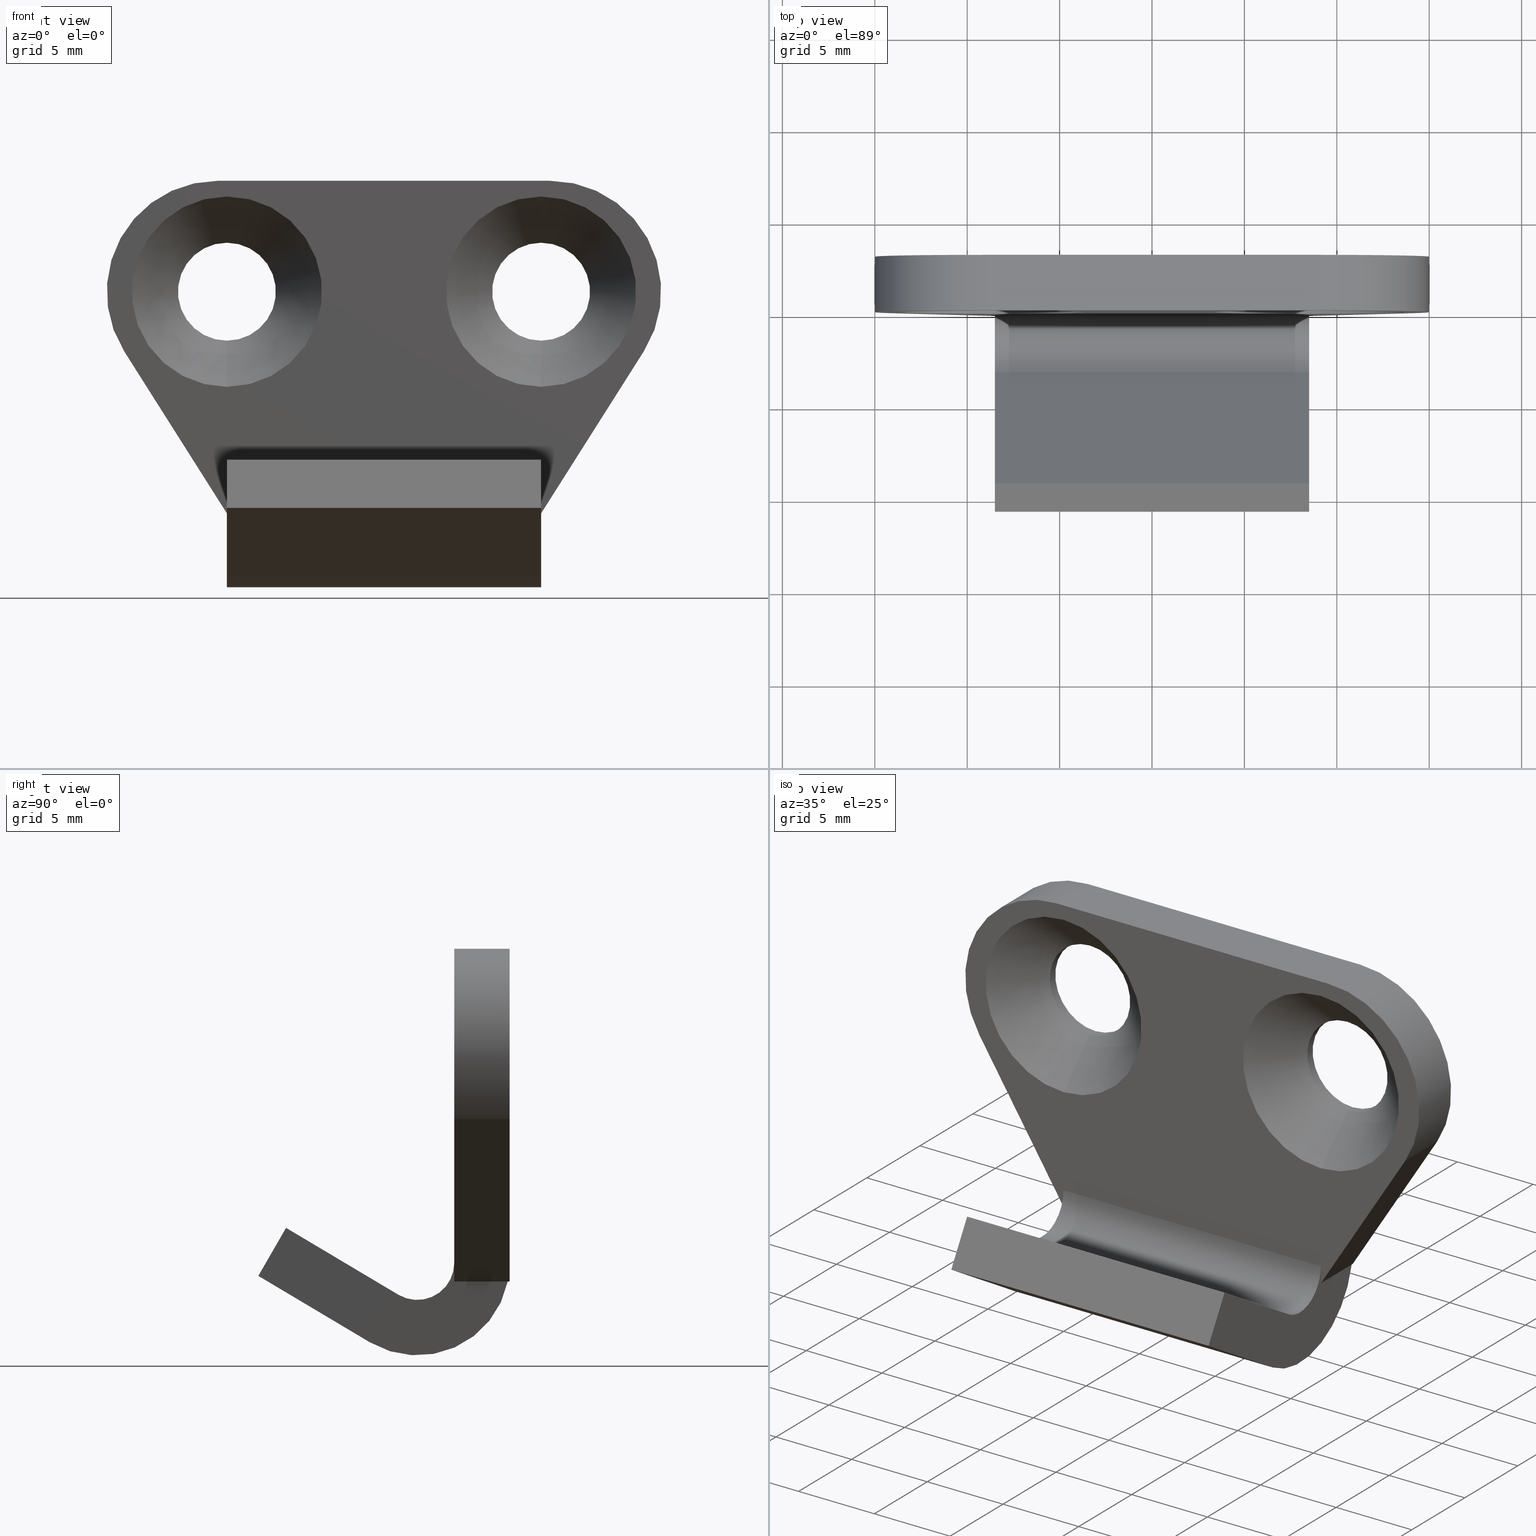
[diagram: canonical four-view strip — front | top / right | iso, engineering-drawing reading convention]
A machine part, canonical four-view strip (front | top / right | iso — engineering-drawing reading convention). The complete STEP part file that produces these views, byte-faithful:
ISO-10303-21;
HEADER;

FILE_DESCRIPTION( (''), '2;1');
FILE_NAME ('PC002.13132.TL-450SUS-K_11140.stp','2025-08-25T10:52:55',(''),(''),'spGate 19.8.4 (****-****-****-****)','','');

FILE_SCHEMA (('AUTOMOTIVE_DESIGN'));
ENDSEC;

DATA;
#10=(GEOMETRIC_REPRESENTATION_CONTEXT(3) GLOBAL_UNCERTAINTY_ASSIGNED_CONTEXT((#11)) GLOBAL_UNIT_ASSIGNED_CONTEXT((#12,#13,#14)) REPRESENTATION_CONTEXT('ID1','3D'));
#11=UNCERTAINTY_MEASURE_WITH_UNIT(LENGTH_MEASURE(0.01),#15,'DISTANCE_ACCURACY_VALUE','Maximum model space distance between geometric entities at asserted connectivities');
#12=(NAMED_UNIT(*) SI_UNIT($,.STERADIAN.) SOLID_ANGLE_UNIT());
#13=(CONVERSION_BASED_UNIT('DEGREE',#16) NAMED_UNIT(#17) PLANE_ANGLE_UNIT());
#14=(LENGTH_UNIT() NAMED_UNIT(*) SI_UNIT(.MILLI.,.METRE.));
#15=(LENGTH_UNIT() NAMED_UNIT(*) SI_UNIT(.MILLI.,.METRE.));
#16=PLANE_ANGLE_MEASURE_WITH_UNIT(PLANE_ANGLE_MEASURE(0.01745329252),#18);
#17=DIMENSIONAL_EXPONENTS(0.0,0.0,0.0,0.0,0.0,0.0,0.0);
#18=(NAMED_UNIT(*) PLANE_ANGLE_UNIT() SI_UNIT($,.RADIAN.));
#19=MANIFOLD_SOLID_BREP('TL-450SUS-K',#31);
#20=ADVANCED_BREP_SHAPE_REPRESENTATION('',(#19),#10);
#21=APPLICATION_CONTEXT('');
#22=APPLICATION_PROTOCOL_DEFINITION('International Standard','automotive_design',1999,#21);
#23=PRODUCT_DEFINITION_CONTEXT('',#21,'design');
#24=PRODUCT_CONTEXT('',#21,'mechanical');
#25=PRODUCT('','','',(#24));
#26=PRODUCT_DEFINITION_FORMATION_WITH_SPECIFIED_SOURCE('','',#25,.NOT_KNOWN.);
#27=PRODUCT_RELATED_PRODUCT_CATEGORY('tool','tool',(#25));
#28=PRODUCT_DEFINITION('','',#26,#23);
#29=PRODUCT_DEFINITION_SHAPE('','',#28);
#30=SHAPE_DEFINITION_REPRESENTATION(#29,#20);
#31=CLOSED_SHELL('',(#40,#41,#42,#43,#44,#45,#46,#47,#48,#49,#50,#51,#52,#53,#54,#55,#56,#57,#58,#59,#60,#61,#62,#63));
#32=COLOUR_RGB('',0.00000000000E+00,0.00000000000E+00,0.00000000000E+00);
#33=FILL_AREA_STYLE_COLOUR('',#32);
#34=FILL_AREA_STYLE('',(#33));
#35=SURFACE_STYLE_FILL_AREA(#34);
#36=SURFACE_SIDE_STYLE('',(#35));
#37=SURFACE_STYLE_USAGE(.BOTH.,#36);
#38=PRESENTATION_STYLE_ASSIGNMENT((#37));
#39=STYLED_ITEM('',(#38),#19);
#40=ADVANCED_FACE('',(#65),#64,.F.);
#41=ADVANCED_FACE('',(#75),#74,.F.);
#42=ADVANCED_FACE('',(#85,#86,#87),#84,.F.);
#43=ADVANCED_FACE('',(#97),#96,.F.);
#44=ADVANCED_FACE('',(#107),#106,.F.);
#45=ADVANCED_FACE('',(#117),#116,.T.);
#46=ADVANCED_FACE('',(#127),#126,.F.);
#47=ADVANCED_FACE('',(#137),#136,.F.);
#48=ADVANCED_FACE('',(#147),#146,.F.);
#49=ADVANCED_FACE('',(#157),#156,.T.);
#50=ADVANCED_FACE('',(#167),#166,.T.);
#51=ADVANCED_FACE('',(#177),#176,.T.);
#52=ADVANCED_FACE('',(#187),#186,.T.);
#53=ADVANCED_FACE('',(#197),#196,.F.);
#54=ADVANCED_FACE('',(#207,#208,#209),#206,.F.);
#55=ADVANCED_FACE('',(#219),#218,.T.);
#56=ADVANCED_FACE('',(#229),#228,.F.);
#57=ADVANCED_FACE('',(#239),#238,.F.);
#58=ADVANCED_FACE('',(#249),#248,.F.);
#59=ADVANCED_FACE('',(#259),#258,.F.);
#60=ADVANCED_FACE('',(#269),#268,.F.);
#61=ADVANCED_FACE('',(#279),#278,.F.);
#62=ADVANCED_FACE('',(#289),#288,.F.);
#63=ADVANCED_FACE('',(#299),#298,.F.);
#64=CYLINDRICAL_SURFACE('',#311,2.00000000000E+00);
#65=FACE_OUTER_BOUND('',#312,.T.);
#66=COLOUR_RGB('',1.00000000000E+00,1.00000000000E+00,1.00000000000E+00);
#67=FILL_AREA_STYLE_COLOUR('',#66);
#68=FILL_AREA_STYLE('',(#67));
#69=SURFACE_STYLE_FILL_AREA(#68);
#70=SURFACE_SIDE_STYLE('',(#69));
#71=SURFACE_STYLE_USAGE(.BOTH.,#70);
#72=PRESENTATION_STYLE_ASSIGNMENT((#71));
#73=STYLED_ITEM('',(#72),#40);
#74=PLANE('',#316);
#75=FACE_OUTER_BOUND('',#317,.T.);
#76=COLOUR_RGB('',1.00000000000E+00,1.00000000000E+00,1.00000000000E+00);
#77=FILL_AREA_STYLE_COLOUR('',#76);
#78=FILL_AREA_STYLE('',(#77));
#79=SURFACE_STYLE_FILL_AREA(#78);
#80=SURFACE_SIDE_STYLE('',(#79));
#81=SURFACE_STYLE_USAGE(.BOTH.,#80);
#82=PRESENTATION_STYLE_ASSIGNMENT((#81));
#83=STYLED_ITEM('',(#82),#41);
#84=PLANE('',#321);
#85=FACE_OUTER_BOUND('',#322,.T.);
#86=FACE_BOUND('',#323,.T.);
#87=FACE_BOUND('',#324,.T.);
#88=COLOUR_RGB('',1.00000000000E+00,1.00000000000E+00,1.00000000000E+00);
#89=FILL_AREA_STYLE_COLOUR('',#88);
#90=FILL_AREA_STYLE('',(#89));
#91=SURFACE_STYLE_FILL_AREA(#90);
#92=SURFACE_SIDE_STYLE('',(#91));
#93=SURFACE_STYLE_USAGE(.BOTH.,#92);
#94=PRESENTATION_STYLE_ASSIGNMENT((#93));
#95=STYLED_ITEM('',(#94),#42);
#96=PLANE('',#328);
#97=FACE_OUTER_BOUND('',#329,.T.);
#98=COLOUR_RGB('',1.00000000000E+00,1.00000000000E+00,1.00000000000E+00);
#99=FILL_AREA_STYLE_COLOUR('',#98);
#100=FILL_AREA_STYLE('',(#99));
#101=SURFACE_STYLE_FILL_AREA(#100);
#102=SURFACE_SIDE_STYLE('',(#101));
#103=SURFACE_STYLE_USAGE(.BOTH.,#102);
#104=PRESENTATION_STYLE_ASSIGNMENT((#103));
#105=STYLED_ITEM('',(#104),#43);
#106=PLANE('',#333);
#107=FACE_OUTER_BOUND('',#334,.T.);
#108=COLOUR_RGB('',1.00000000000E+00,1.00000000000E+00,1.00000000000E+00);
#109=FILL_AREA_STYLE_COLOUR('',#108);
#110=FILL_AREA_STYLE('',(#109));
#111=SURFACE_STYLE_FILL_AREA(#110);
#112=SURFACE_SIDE_STYLE('',(#111));
#113=SURFACE_STYLE_USAGE(.BOTH.,#112);
#114=PRESENTATION_STYLE_ASSIGNMENT((#113));
#115=STYLED_ITEM('',(#114),#44);
#116=PLANE('',#338);
#117=FACE_OUTER_BOUND('',#339,.T.);
#118=COLOUR_RGB('',1.00000000000E+00,1.00000000000E+00,1.00000000000E+00);
#119=FILL_AREA_STYLE_COLOUR('',#118);
#120=FILL_AREA_STYLE('',(#119));
#121=SURFACE_STYLE_FILL_AREA(#120);
#122=SURFACE_SIDE_STYLE('',(#121));
#123=SURFACE_STYLE_USAGE(.BOTH.,#122);
#124=PRESENTATION_STYLE_ASSIGNMENT((#123));
#125=STYLED_ITEM('',(#124),#45);
#126=PLANE('',#343);
#127=FACE_OUTER_BOUND('',#344,.T.);
#128=COLOUR_RGB('',1.00000000000E+00,1.00000000000E+00,1.00000000000E+00);
#129=FILL_AREA_STYLE_COLOUR('',#128);
#130=FILL_AREA_STYLE('',(#129));
#131=SURFACE_STYLE_FILL_AREA(#130);
#132=SURFACE_SIDE_STYLE('',(#131));
#133=SURFACE_STYLE_USAGE(.BOTH.,#132);
#134=PRESENTATION_STYLE_ASSIGNMENT((#133));
#135=STYLED_ITEM('',(#134),#46);
#136=PLANE('',#348);
#137=FACE_OUTER_BOUND('',#349,.T.);
#138=COLOUR_RGB('',1.00000000000E+00,1.00000000000E+00,1.00000000000E+00);
#139=FILL_AREA_STYLE_COLOUR('',#138);
#140=FILL_AREA_STYLE('',(#139));
#141=SURFACE_STYLE_FILL_AREA(#140);
#142=SURFACE_SIDE_STYLE('',(#141));
#143=SURFACE_STYLE_USAGE(.BOTH.,#142);
#144=PRESENTATION_STYLE_ASSIGNMENT((#143));
#145=STYLED_ITEM('',(#144),#47);
#146=PLANE('',#353);
#147=FACE_OUTER_BOUND('',#354,.T.);
#148=COLOUR_RGB('',1.00000000000E+00,1.00000000000E+00,1.00000000000E+00);
#149=FILL_AREA_STYLE_COLOUR('',#148);
#150=FILL_AREA_STYLE('',(#149));
#151=SURFACE_STYLE_FILL_AREA(#150);
#152=SURFACE_SIDE_STYLE('',(#151));
#153=SURFACE_STYLE_USAGE(.BOTH.,#152);
#154=PRESENTATION_STYLE_ASSIGNMENT((#153));
#155=STYLED_ITEM('',(#154),#48);
#156=CYLINDRICAL_SURFACE('',#358,6.00000000000E+00);
#157=FACE_OUTER_BOUND('',#359,.T.);
#158=COLOUR_RGB('',1.00000000000E+00,1.00000000000E+00,1.00000000000E+00);
#159=FILL_AREA_STYLE_COLOUR('',#158);
#160=FILL_AREA_STYLE('',(#159));
#161=SURFACE_STYLE_FILL_AREA(#160);
#162=SURFACE_SIDE_STYLE('',(#161));
#163=SURFACE_STYLE_USAGE(.BOTH.,#162);
#164=PRESENTATION_STYLE_ASSIGNMENT((#163));
#165=STYLED_ITEM('',(#164),#49);
#166=PLANE('',#363);
#167=FACE_OUTER_BOUND('',#364,.T.);
#168=COLOUR_RGB('',1.00000000000E+00,1.00000000000E+00,1.00000000000E+00);
#169=FILL_AREA_STYLE_COLOUR('',#168);
#170=FILL_AREA_STYLE('',(#169));
#171=SURFACE_STYLE_FILL_AREA(#170);
#172=SURFACE_SIDE_STYLE('',(#171));
#173=SURFACE_STYLE_USAGE(.BOTH.,#172);
#174=PRESENTATION_STYLE_ASSIGNMENT((#173));
#175=STYLED_ITEM('',(#174),#50);
#176=PLANE('',#368);
#177=FACE_OUTER_BOUND('',#369,.T.);
#178=COLOUR_RGB('',1.00000000000E+00,1.00000000000E+00,1.00000000000E+00);
#179=FILL_AREA_STYLE_COLOUR('',#178);
#180=FILL_AREA_STYLE('',(#179));
#181=SURFACE_STYLE_FILL_AREA(#180);
#182=SURFACE_SIDE_STYLE('',(#181));
#183=SURFACE_STYLE_USAGE(.BOTH.,#182);
#184=PRESENTATION_STYLE_ASSIGNMENT((#183));
#185=STYLED_ITEM('',(#184),#51);
#186=CYLINDRICAL_SURFACE('',#373,6.00000000000E+00);
#187=FACE_OUTER_BOUND('',#374,.T.);
#188=COLOUR_RGB('',1.00000000000E+00,1.00000000000E+00,1.00000000000E+00);
#189=FILL_AREA_STYLE_COLOUR('',#188);
#190=FILL_AREA_STYLE('',(#189));
#191=SURFACE_STYLE_FILL_AREA(#190);
#192=SURFACE_SIDE_STYLE('',(#191));
#193=SURFACE_STYLE_USAGE(.BOTH.,#192);
#194=PRESENTATION_STYLE_ASSIGNMENT((#193));
#195=STYLED_ITEM('',(#194),#52);
#196=PLANE('',#378);
#197=FACE_OUTER_BOUND('',#379,.T.);
#198=COLOUR_RGB('',1.00000000000E+00,1.00000000000E+00,1.00000000000E+00);
#199=FILL_AREA_STYLE_COLOUR('',#198);
#200=FILL_AREA_STYLE('',(#199));
#201=SURFACE_STYLE_FILL_AREA(#200);
#202=SURFACE_SIDE_STYLE('',(#201));
#203=SURFACE_STYLE_USAGE(.BOTH.,#202);
#204=PRESENTATION_STYLE_ASSIGNMENT((#203));
#205=STYLED_ITEM('',(#204),#53);
#206=PLANE('',#383);
#207=FACE_OUTER_BOUND('',#384,.T.);
#208=FACE_BOUND('',#385,.T.);
#209=FACE_BOUND('',#386,.T.);
#210=COLOUR_RGB('',1.00000000000E+00,1.00000000000E+00,1.00000000000E+00);
#211=FILL_AREA_STYLE_COLOUR('',#210);
#212=FILL_AREA_STYLE('',(#211));
#213=SURFACE_STYLE_FILL_AREA(#212);
#214=SURFACE_SIDE_STYLE('',(#213));
#215=SURFACE_STYLE_USAGE(.BOTH.,#214);
#216=PRESENTATION_STYLE_ASSIGNMENT((#215));
#217=STYLED_ITEM('',(#216),#54);
#218=CYLINDRICAL_SURFACE('',#390,5.00000000000E+00);
#219=FACE_OUTER_BOUND('',#391,.T.);
#220=COLOUR_RGB('',1.00000000000E+00,1.00000000000E+00,1.00000000000E+00);
#221=FILL_AREA_STYLE_COLOUR('',#220);
#222=FILL_AREA_STYLE('',(#221));
#223=SURFACE_STYLE_FILL_AREA(#222);
#224=SURFACE_SIDE_STYLE('',(#223));
#225=SURFACE_STYLE_USAGE(.BOTH.,#224);
#226=PRESENTATION_STYLE_ASSIGNMENT((#225));
#227=STYLED_ITEM('',(#226),#55);
#228=CYLINDRICAL_SURFACE('',#395,2.65000000006E+00);
#229=FACE_OUTER_BOUND('',#396,.T.);
#230=COLOUR_RGB('',1.00000000000E+00,1.00000000000E+00,1.00000000000E+00);
#231=FILL_AREA_STYLE_COLOUR('',#230);
#232=FILL_AREA_STYLE('',(#231));
#233=SURFACE_STYLE_FILL_AREA(#232);
#234=SURFACE_SIDE_STYLE('',(#233));
#235=SURFACE_STYLE_USAGE(.BOTH.,#234);
#236=PRESENTATION_STYLE_ASSIGNMENT((#235));
#237=STYLED_ITEM('',(#236),#56);
#238=CYLINDRICAL_SURFACE('',#400,2.65000000006E+00);
#239=FACE_OUTER_BOUND('',#401,.T.);
#240=COLOUR_RGB('',1.00000000000E+00,1.00000000000E+00,1.00000000000E+00);
#241=FILL_AREA_STYLE_COLOUR('',#240);
#242=FILL_AREA_STYLE('',(#241));
#243=SURFACE_STYLE_FILL_AREA(#242);
#244=SURFACE_SIDE_STYLE('',(#243));
#245=SURFACE_STYLE_USAGE(.BOTH.,#244);
#246=PRESENTATION_STYLE_ASSIGNMENT((#245));
#247=STYLED_ITEM('',(#246),#57);
#248=( BOUNDED_SURFACE() B_SPLINE_SURFACE( 2,1,((#402,#403),(#404,#405),(#406,#407),(#408,#409),(#410,#411)), .UNSPECIFIED.,.F.,.F.,.F.) B_SPLINE_SURFACE_WITH_KNOTS((3,2,3),(2,2),(0.00000000000E+00,5.00000000000E-01,1.00000000000E+00),(0.00000000000E+00,1.00000000000E+00), .UNSPECIFIED. ) GEOMETRIC_REPRESENTATION_ITEM() RATIONAL_B_SPLINE_SURFACE(((1.00000000000E+00,1.00000000000E+00),(7.07106781187E-01,7.07106781187E-01),(1.00000000000E+00,1.00000000000E+00),(7.07106781187E-01,7.07106781187E-01),(1.00000000000E+00,1.00000000000E+00))) REPRESENTATION_ITEM('') SURFACE() );
#249=FACE_OUTER_BOUND('',#412,.T.);
#250=COLOUR_RGB('',1.00000000000E+00,1.00000000000E+00,1.00000000000E+00);
#251=FILL_AREA_STYLE_COLOUR('',#250);
#252=FILL_AREA_STYLE('',(#251));
#253=SURFACE_STYLE_FILL_AREA(#252);
#254=SURFACE_SIDE_STYLE('',(#253));
#255=SURFACE_STYLE_USAGE(.BOTH.,#254);
#256=PRESENTATION_STYLE_ASSIGNMENT((#255));
#257=STYLED_ITEM('',(#256),#58);
#258=( BOUNDED_SURFACE() B_SPLINE_SURFACE( 2,1,((#413,#414),(#415,#416),(#417,#418),(#419,#420),(#421,#422)), .UNSPECIFIED.,.F.,.F.,.F.) B_SPLINE_SURFACE_WITH_KNOTS((3,2,3),(2,2),(0.00000000000E+00,5.00000000000E-01,1.00000000000E+00),(0.00000000000E+00,1.00000000000E+00), .UNSPECIFIED. ) GEOMETRIC_REPRESENTATION_ITEM() RATIONAL_B_SPLINE_SURFACE(((1.00000000000E+00,1.00000000000E+00),(7.07106781187E-01,7.07106781187E-01),(1.00000000000E+00,1.00000000000E+00),(7.07106781187E-01,7.07106781187E-01),(1.00000000000E+00,1.00000000000E+00))) REPRESENTATION_ITEM('') SURFACE() );
#259=FACE_OUTER_BOUND('',#423,.T.);
#260=COLOUR_RGB('',1.00000000000E+00,1.00000000000E+00,1.00000000000E+00);
#261=FILL_AREA_STYLE_COLOUR('',#260);
#262=FILL_AREA_STYLE('',(#261));
#263=SURFACE_STYLE_FILL_AREA(#262);
#264=SURFACE_SIDE_STYLE('',(#263));
#265=SURFACE_STYLE_USAGE(.BOTH.,#264);
#266=PRESENTATION_STYLE_ASSIGNMENT((#265));
#267=STYLED_ITEM('',(#266),#59);
#268=( BOUNDED_SURFACE() B_SPLINE_SURFACE( 2,1,((#424,#425),(#426,#427),(#428,#429),(#430,#431),(#432,#433)), .UNSPECIFIED.,.F.,.F.,.F.) B_SPLINE_SURFACE_WITH_KNOTS((3,2,3),(2,2),(0.00000000000E+00,5.00000000000E-01,1.00000000000E+00),(0.00000000000E+00,1.00000000000E+00), .UNSPECIFIED. ) GEOMETRIC_REPRESENTATION_ITEM() RATIONAL_B_SPLINE_SURFACE(((1.00000000000E+00,1.00000000000E+00),(7.07106781187E-01,7.07106781187E-01),(1.00000000000E+00,1.00000000000E+00),(7.07106781187E-01,7.07106781187E-01),(1.00000000000E+00,1.00000000000E+00))) REPRESENTATION_ITEM('') SURFACE() );
#269=FACE_OUTER_BOUND('',#434,.T.);
#270=COLOUR_RGB('',1.00000000000E+00,1.00000000000E+00,1.00000000000E+00);
#271=FILL_AREA_STYLE_COLOUR('',#270);
#272=FILL_AREA_STYLE('',(#271));
#273=SURFACE_STYLE_FILL_AREA(#272);
#274=SURFACE_SIDE_STYLE('',(#273));
#275=SURFACE_STYLE_USAGE(.BOTH.,#274);
#276=PRESENTATION_STYLE_ASSIGNMENT((#275));
#277=STYLED_ITEM('',(#276),#60);
#278=( BOUNDED_SURFACE() B_SPLINE_SURFACE( 2,1,((#435,#436),(#437,#438),(#439,#440),(#441,#442),(#443,#444)), .UNSPECIFIED.,.F.,.F.,.F.) B_SPLINE_SURFACE_WITH_KNOTS((3,2,3),(2,2),(0.00000000000E+00,5.00000000000E-01,1.00000000000E+00),(0.00000000000E+00,1.00000000000E+00), .UNSPECIFIED. ) GEOMETRIC_REPRESENTATION_ITEM() RATIONAL_B_SPLINE_SURFACE(((1.00000000000E+00,1.00000000000E+00),(7.07106781187E-01,7.07106781187E-01),(1.00000000000E+00,1.00000000000E+00),(7.07106781187E-01,7.07106781187E-01),(1.00000000000E+00,1.00000000000E+00))) REPRESENTATION_ITEM('') SURFACE() );
#279=FACE_OUTER_BOUND('',#445,.T.);
#280=COLOUR_RGB('',1.00000000000E+00,1.00000000000E+00,1.00000000000E+00);
#281=FILL_AREA_STYLE_COLOUR('',#280);
#282=FILL_AREA_STYLE('',(#281));
#283=SURFACE_STYLE_FILL_AREA(#282);
#284=SURFACE_SIDE_STYLE('',(#283));
#285=SURFACE_STYLE_USAGE(.BOTH.,#284);
#286=PRESENTATION_STYLE_ASSIGNMENT((#285));
#287=STYLED_ITEM('',(#286),#61);
#288=CYLINDRICAL_SURFACE('',#449,2.65000000006E+00);
#289=FACE_OUTER_BOUND('',#450,.T.);
#290=COLOUR_RGB('',1.00000000000E+00,1.00000000000E+00,1.00000000000E+00);
#291=FILL_AREA_STYLE_COLOUR('',#290);
#292=FILL_AREA_STYLE('',(#291));
#293=SURFACE_STYLE_FILL_AREA(#292);
#294=SURFACE_SIDE_STYLE('',(#293));
#295=SURFACE_STYLE_USAGE(.BOTH.,#294);
#296=PRESENTATION_STYLE_ASSIGNMENT((#295));
#297=STYLED_ITEM('',(#296),#62);
#298=CYLINDRICAL_SURFACE('',#454,2.65000000006E+00);
#299=FACE_OUTER_BOUND('',#455,.T.);
#300=COLOUR_RGB('',1.00000000000E+00,1.00000000000E+00,1.00000000000E+00);
#301=FILL_AREA_STYLE_COLOUR('',#300);
#302=FILL_AREA_STYLE('',(#301));
#303=SURFACE_STYLE_FILL_AREA(#302);
#304=SURFACE_SIDE_STYLE('',(#303));
#305=SURFACE_STYLE_USAGE(.BOTH.,#304);
#306=PRESENTATION_STYLE_ASSIGNMENT((#305));
#307=STYLED_ITEM('',(#306),#63);
#308=CARTESIAN_POINT('',(9.91500000000E+02,-2.00000000000E+00,-1.10000000000E+01));
#309=DIRECTION('',(1.00000000000E+00,-0.00000000000E+00,-0.00000000000E+00));
#310=DIRECTION('',(0.00000000000E+00,-4.92423560103E-01,8.70355695940E-01));
#311=AXIS2_PLACEMENT_3D('',#308,#309,#310);
#312=EDGE_LOOP('',(#456,#457,#458,#459));
#313=CARTESIAN_POINT('',(-1.02000000000E+01,-9.70767598823E+00,-8.73815764022E+00));
#314=DIRECTION('',(0.00000000000E+00,-5.11620058861E-01,-8.59211798901E-01));
#315=DIRECTION('',(0.00000000000E+00,8.59211798901E-01,-5.11620058861E-01));
#316=AXIS2_PLACEMENT_3D('',#313,#314,#315);
#317=EDGE_LOOP('',(#460,#461,#462,#463));
#318=CARTESIAN_POINT('',(-1.91599720750E+01,0.00000000000E+00,-1.38000000002E+01));
#319=DIRECTION('',(-0.00000000000E+00,1.00000000000E+00,0.00000000000E+00));
#320=DIRECTION('',(0.00000000000E+00,-0.00000000000E+00,1.00000000000E+00));
#321=AXIS2_PLACEMENT_3D('',#318,#319,#320);
#322=EDGE_LOOP('',(#464,#465,#466,#467,#468,#469,#470,#471));
#323=EDGE_LOOP('',(#472,#473));
#324=EDGE_LOOP('',(#474,#475));
#325=CARTESIAN_POINT('',(-1.02000000000E+01,-1.07500000000E+01,-1.19578838325E+01));
#326=DIRECTION('',(0.00000000000E+00,8.66025403784E-01,-5.00000000000E-01));
#327=DIRECTION('',(0.00000000000E+00,5.00000000000E-01,8.66025403784E-01));
#328=AXIS2_PLACEMENT_3D('',#325,#326,#327);
#329=EDGE_LOOP('',(#476,#477,#478,#479));
#330=CARTESIAN_POINT('',(-1.02000000000E+01,-3.95409323109E+00,-1.56557483553E+01));
#331=DIRECTION('',(-0.00000000000E+00,5.11653314744E-01,8.59191995721E-01));
#332=DIRECTION('',(0.00000000000E+00,-8.59191995721E-01,5.11653314744E-01));
#333=AXIS2_PLACEMENT_3D('',#330,#331,#332);
#334=EDGE_LOOP('',(#480,#481,#482,#483));
#335=CARTESIAN_POINT('',(8.50000000000E+00,-1.19498979486E+01,-8.12017425339E+00));
#336=DIRECTION('',(1.00000000000E+00,0.00000000000E+00,-0.00000000000E+00));
#337=DIRECTION('',(-0.00000000000E+00,0.00000000000E+00,-1.00000000000E+00));
#338=AXIS2_PLACEMENT_3D('',#335,#336,#337);
#339=EDGE_LOOP('',(#484,#485,#486,#487,#488,#489,#490));
#340=CARTESIAN_POINT('',(-8.50000000000E+00,-1.19498979486E+01,-8.12017425339E+00));
#341=DIRECTION('',(1.00000000000E+00,0.00000000000E+00,-0.00000000000E+00));
#342=DIRECTION('',(-0.00000000000E+00,0.00000000000E+00,-1.00000000000E+00));
#343=AXIS2_PLACEMENT_3D('',#340,#341,#342);
#344=EDGE_LOOP('',(#491,#492,#493,#494,#495,#496,#497));
#345=CARTESIAN_POINT('',(7.94316362310E+00,-3.00000000000E-01,-1.28788818178E+01));
#346=DIRECTION('',(-8.44727294833E-01,0.00000000000E+00,5.35196970623E-01));
#347=DIRECTION('',(5.35196970623E-01,0.00000000000E+00,8.44727294833E-01));
#348=AXIS2_PLACEMENT_3D('',#345,#346,#347);
#349=EDGE_LOOP('',(#498,#499,#500,#501,#502));
#350=CARTESIAN_POINT('',(8.50000000000E+00,2.88887743409E+00,-1.09000000000E+01));
#351=DIRECTION('',(1.00000000000E+00,0.00000000000E+00,0.00000000000E+00));
#352=DIRECTION('',(0.00000000000E+00,0.00000000000E+00,-1.00000000000E+00));
#353=AXIS2_PLACEMENT_3D('',#350,#351,#352);
#354=EDGE_LOOP('',(#503,#504,#505));
#355=CARTESIAN_POINT('',(8.99999999997E+00,1.00000000000E+03,-3.18519433051E-10));
#356=DIRECTION('',(-0.00000000000E+00,1.00000000000E+00,0.00000000000E+00));
#357=DIRECTION('',(-0.00000000000E+00,-0.00000000000E+00,1.00000000000E+00));
#358=AXIS2_PLACEMENT_3D('',#355,#356,#357);
#359=EDGE_LOOP('',(#506,#507,#508,#509));
#360=CARTESIAN_POINT('',(-7.94316362310E+00,-3.00000000000E-01,-1.28788818178E+01));
#361=DIRECTION('',(-8.44727294833E-01,0.00000000000E+00,-5.35196970623E-01));
#362=DIRECTION('',(-5.35196970623E-01,0.00000000000E+00,8.44727294833E-01));
#363=AXIS2_PLACEMENT_3D('',#360,#361,#362);
#364=EDGE_LOOP('',(#510,#511,#512,#513,#514));
#365=CARTESIAN_POINT('',(-8.50000000000E+00,2.88887743409E+00,-1.09000000000E+01));
#366=DIRECTION('',(1.00000000000E+00,-0.00000000000E+00,9.44460559151E-15));
#367=DIRECTION('',(9.44460559151E-15,0.00000000000E+00,-1.00000000000E+00));
#368=AXIS2_PLACEMENT_3D('',#365,#366,#367);
#369=EDGE_LOOP('',(#515,#516,#517));
#370=CARTESIAN_POINT('',(-8.99999999997E+00,1.00000000000E+03,-3.18573236801E-10));
#371=DIRECTION('',(-0.00000000000E+00,1.00000000000E+00,0.00000000000E+00));
#372=DIRECTION('',(-0.00000000000E+00,-0.00000000000E+00,1.00000000000E+00));
#373=AXIS2_PLACEMENT_3D('',#370,#371,#372);
#374=EDGE_LOOP('',(#518,#519,#520,#521));
#375=CARTESIAN_POINT('',(1.08000000000E+01,-3.00000000000E-01,6.00000000000E+00));
#376=DIRECTION('',(0.00000000000E+00,0.00000000000E+00,-1.00000000000E+00));
#377=DIRECTION('',(-1.00000000000E+00,0.00000000000E+00,0.00000000000E+00));
#378=AXIS2_PLACEMENT_3D('',#375,#376,#377);
#379=EDGE_LOOP('',(#522,#523,#524,#525));
#380=CARTESIAN_POINT('',(-1.91599720750E+01,3.00000000000E+00,7.80000000002E+00));
#381=DIRECTION('',(0.00000000000E+00,-1.00000000000E+00,0.00000000000E+00));
#382=DIRECTION('',(0.00000000000E+00,0.00000000000E+00,-1.00000000000E+00));
#383=AXIS2_PLACEMENT_3D('',#380,#381,#382);
#384=EDGE_LOOP('',(#526,#527,#528,#529,#530,#531,#532,#533));
#385=EDGE_LOOP('',(#534,#535));
#386=EDGE_LOOP('',(#536,#537));
#387=CARTESIAN_POINT('',(9.91500000000E+02,-2.00000000000E+00,-1.10000000000E+01));
#388=DIRECTION('',(1.00000000000E+00,-0.00000000000E+00,-0.00000000000E+00));
#389=DIRECTION('',(0.00000000000E+00,-4.92423560103E-01,8.70355695940E-01));
#390=AXIS2_PLACEMENT_3D('',#387,#388,#389);
#391=EDGE_LOOP('',(#538,#539,#540,#541,#542,#543));
#392=CARTESIAN_POINT('',(-8.50000000000E+00,0.00000000000E+00,0.00000000000E+00));
#393=DIRECTION('',(0.00000000000E+00,-1.00000000000E+00,-0.00000000000E+00));
#394=DIRECTION('',(-0.00000000000E+00,-0.00000000000E+00,-1.00000000000E+00));
#395=AXIS2_PLACEMENT_3D('',#392,#393,#394);
#396=EDGE_LOOP('',(#544,#545,#546,#547));
#397=CARTESIAN_POINT('',(-8.50000000000E+00,0.00000000000E+00,0.00000000000E+00));
#398=DIRECTION('',(0.00000000000E+00,-1.00000000000E+00,-0.00000000000E+00));
#399=DIRECTION('',(-0.00000000000E+00,-0.00000000000E+00,-1.00000000000E+00));
#400=AXIS2_PLACEMENT_3D('',#397,#398,#399);
#401=EDGE_LOOP('',(#548,#549,#550,#551));
#402=CARTESIAN_POINT('',(-8.50000000000E+00,5.15000000000E+00,0.00000000000E+00));
#403=CARTESIAN_POINT('',(-8.50000000000E+00,-2.13319984622E+00,-7.28319984622E+00));
#404=CARTESIAN_POINT('',(-8.50000000000E+00,5.15000000000E+00,0.00000000000E+00));
#405=CARTESIAN_POINT('',(-1.21680015378E+00,-2.13319984622E+00,-7.28319984622E+00));
#406=CARTESIAN_POINT('',(-8.50000000000E+00,5.15000000000E+00,0.00000000000E+00));
#407=CARTESIAN_POINT('',(-1.21680015378E+00,-2.13319984622E+00,5.99501651706E-14));
#408=CARTESIAN_POINT('',(-8.50000000000E+00,5.15000000000E+00,0.00000000000E+00));
#409=CARTESIAN_POINT('',(-1.21680015378E+00,-2.13319984622E+00,7.28319984622E+00));
#410=CARTESIAN_POINT('',(-8.50000000000E+00,5.15000000000E+00,0.00000000000E+00));
#411=CARTESIAN_POINT('',(-8.50000000000E+00,-2.13319984622E+00,7.28319984622E+00));
#412=EDGE_LOOP('',(#552,#553,#554,#555));
#413=CARTESIAN_POINT('',(-8.50000000000E+00,5.15000000000E+00,0.00000000000E+00));
#414=CARTESIAN_POINT('',(-8.50000000000E+00,-2.13319984622E+00,7.28319984622E+00));
#415=CARTESIAN_POINT('',(-8.50000000000E+00,5.15000000000E+00,0.00000000000E+00));
#416=CARTESIAN_POINT('',(-1.57831998462E+01,-2.13319984622E+00,7.28319984622E+00));
#417=CARTESIAN_POINT('',(-8.50000000000E+00,5.15000000000E+00,0.00000000000E+00));
#418=CARTESIAN_POINT('',(-1.57831998462E+01,-2.13319984622E+00,-5.99501651706E-14));
#419=CARTESIAN_POINT('',(-8.50000000000E+00,5.15000000000E+00,0.00000000000E+00));
#420=CARTESIAN_POINT('',(-1.57831998462E+01,-2.13319984622E+00,-7.28319984622E+00));
#421=CARTESIAN_POINT('',(-8.50000000000E+00,5.15000000000E+00,0.00000000000E+00));
#422=CARTESIAN_POINT('',(-8.50000000000E+00,-2.13319984622E+00,-7.28319984622E+00));
#423=EDGE_LOOP('',(#556,#557,#558,#559));
#424=CARTESIAN_POINT('',(8.50000000000E+00,2.49999999995E+00,-2.65000000006E+00));
#425=CARTESIAN_POINT('',(8.50000000000E+00,0.00000000000E+00,-5.15000000000E+00));
#426=CARTESIAN_POINT('',(1.11500000001E+01,2.49999999995E+00,-2.65000000006E+00));
#427=CARTESIAN_POINT('',(1.36500000000E+01,0.00000000000E+00,-5.15000000000E+00));
#428=CARTESIAN_POINT('',(1.11500000001E+01,2.49999999995E+00,1.61409113851E-15));
#429=CARTESIAN_POINT('',(1.36500000000E+01,0.00000000000E+00,1.46101028862E-15));
#430=CARTESIAN_POINT('',(1.11500000001E+01,2.49999999995E+00,2.65000000006E+00));
#431=CARTESIAN_POINT('',(1.36500000000E+01,0.00000000000E+00,5.15000000000E+00));
#432=CARTESIAN_POINT('',(8.50000000000E+00,2.49999999995E+00,2.65000000006E+00));
#433=CARTESIAN_POINT('',(8.50000000000E+00,0.00000000000E+00,5.15000000000E+00));
#434=EDGE_LOOP('',(#560,#561,#562,#563));
#435=CARTESIAN_POINT('',(8.50000000000E+00,2.49999999995E+00,2.65000000006E+00));
#436=CARTESIAN_POINT('',(8.50000000000E+00,0.00000000000E+00,5.15000000000E+00));
#437=CARTESIAN_POINT('',(5.84999999994E+00,2.49999999995E+00,2.65000000006E+00));
#438=CARTESIAN_POINT('',(3.35000000000E+00,0.00000000000E+00,5.15000000000E+00));
#439=CARTESIAN_POINT('',(5.84999999994E+00,2.49999999995E+00,1.62265700891E-16));
#440=CARTESIAN_POINT('',(3.35000000000E+00,0.00000000000E+00,-1.46101028862E-15));
#441=CARTESIAN_POINT('',(5.84999999994E+00,2.49999999995E+00,-2.65000000006E+00));
#442=CARTESIAN_POINT('',(3.35000000000E+00,0.00000000000E+00,-5.15000000000E+00));
#443=CARTESIAN_POINT('',(8.50000000000E+00,2.49999999995E+00,-2.65000000006E+00));
#444=CARTESIAN_POINT('',(8.50000000000E+00,0.00000000000E+00,-5.15000000000E+00));
#445=EDGE_LOOP('',(#564,#565,#566,#567));
#446=CARTESIAN_POINT('',(8.50000000000E+00,0.00000000000E+00,0.00000000000E+00));
#447=DIRECTION('',(0.00000000000E+00,-1.00000000000E+00,-0.00000000000E+00));
#448=DIRECTION('',(0.00000000000E+00,0.00000000000E+00,-1.00000000000E+00));
#449=AXIS2_PLACEMENT_3D('',#446,#447,#448);
#450=EDGE_LOOP('',(#568,#569,#570,#571));
#451=CARTESIAN_POINT('',(8.50000000000E+00,0.00000000000E+00,0.00000000000E+00));
#452=DIRECTION('',(0.00000000000E+00,-1.00000000000E+00,-0.00000000000E+00));
#453=DIRECTION('',(0.00000000000E+00,0.00000000000E+00,-1.00000000000E+00));
#454=AXIS2_PLACEMENT_3D('',#451,#452,#453);
#455=EDGE_LOOP('',(#572,#573,#574,#575));
#456=ORIENTED_EDGE('',*,*,#576,.T.);
#457=ORIENTED_EDGE('',*,*,#577,.F.);
#458=ORIENTED_EDGE('',*,*,#578,.F.);
#459=ORIENTED_EDGE('',*,*,#579,.T.);
#460=ORIENTED_EDGE('',*,*,#580,.T.);
#461=ORIENTED_EDGE('',*,*,#581,.F.);
#462=ORIENTED_EDGE('',*,*,#582,.F.);
#463=ORIENTED_EDGE('',*,*,#577,.T.);
#464=ORIENTED_EDGE('',*,*,#583,.T.);
#465=ORIENTED_EDGE('',*,*,#584,.T.);
#466=ORIENTED_EDGE('',*,*,#585,.T.);
#467=ORIENTED_EDGE('',*,*,#586,.T.);
#468=ORIENTED_EDGE('',*,*,#579,.F.);
#469=ORIENTED_EDGE('',*,*,#587,.F.);
#470=ORIENTED_EDGE('',*,*,#588,.F.);
#471=ORIENTED_EDGE('',*,*,#589,.T.);
#472=ORIENTED_EDGE('',*,*,#590,.T.);
#473=ORIENTED_EDGE('',*,*,#591,.T.);
#474=ORIENTED_EDGE('',*,*,#592,.T.);
#475=ORIENTED_EDGE('',*,*,#593,.T.);
#476=ORIENTED_EDGE('',*,*,#594,.T.);
#477=ORIENTED_EDGE('',*,*,#595,.F.);
#478=ORIENTED_EDGE('',*,*,#596,.F.);
#479=ORIENTED_EDGE('',*,*,#581,.T.);
#480=ORIENTED_EDGE('',*,*,#597,.T.);
#481=ORIENTED_EDGE('',*,*,#598,.F.);
#482=ORIENTED_EDGE('',*,*,#599,.F.);
#483=ORIENTED_EDGE('',*,*,#595,.T.);
#484=ORIENTED_EDGE('',*,*,#600,.T.);
#485=ORIENTED_EDGE('',*,*,#587,.T.);
#486=ORIENTED_EDGE('',*,*,#578,.T.);
#487=ORIENTED_EDGE('',*,*,#582,.T.);
#488=ORIENTED_EDGE('',*,*,#596,.T.);
#489=ORIENTED_EDGE('',*,*,#599,.T.);
#490=ORIENTED_EDGE('',*,*,#601,.F.);
#491=ORIENTED_EDGE('',*,*,#586,.F.);
#492=ORIENTED_EDGE('',*,*,#602,.F.);
#493=ORIENTED_EDGE('',*,*,#603,.T.);
#494=ORIENTED_EDGE('',*,*,#597,.F.);
#495=ORIENTED_EDGE('',*,*,#594,.F.);
#496=ORIENTED_EDGE('',*,*,#580,.F.);
#497=ORIENTED_EDGE('',*,*,#576,.F.);
#498=ORIENTED_EDGE('',*,*,#588,.T.);
#499=ORIENTED_EDGE('',*,*,#600,.F.);
#500=ORIENTED_EDGE('',*,*,#604,.F.);
#501=ORIENTED_EDGE('',*,*,#605,.F.);
#502=ORIENTED_EDGE('',*,*,#606,.T.);
#503=ORIENTED_EDGE('',*,*,#607,.F.);
#504=ORIENTED_EDGE('',*,*,#608,.F.);
#505=ORIENTED_EDGE('',*,*,#604,.T.);
#506=ORIENTED_EDGE('',*,*,#589,.F.);
#507=ORIENTED_EDGE('',*,*,#606,.F.);
#508=ORIENTED_EDGE('',*,*,#609,.T.);
#509=ORIENTED_EDGE('',*,*,#610,.T.);
#510=ORIENTED_EDGE('',*,*,#585,.F.);
#511=ORIENTED_EDGE('',*,*,#611,.F.);
#512=ORIENTED_EDGE('',*,*,#612,.T.);
#513=ORIENTED_EDGE('',*,*,#613,.T.);
#514=ORIENTED_EDGE('',*,*,#602,.T.);
#515=ORIENTED_EDGE('',*,*,#614,.T.);
#516=ORIENTED_EDGE('',*,*,#615,.T.);
#517=ORIENTED_EDGE('',*,*,#613,.F.);
#518=ORIENTED_EDGE('',*,*,#584,.F.);
#519=ORIENTED_EDGE('',*,*,#616,.F.);
#520=ORIENTED_EDGE('',*,*,#617,.T.);
#521=ORIENTED_EDGE('',*,*,#611,.T.);
#522=ORIENTED_EDGE('',*,*,#618,.T.);
#523=ORIENTED_EDGE('',*,*,#616,.T.);
#524=ORIENTED_EDGE('',*,*,#583,.F.);
#525=ORIENTED_EDGE('',*,*,#610,.F.);
#526=ORIENTED_EDGE('',*,*,#619,.T.);
#527=ORIENTED_EDGE('',*,*,#614,.F.);
#528=ORIENTED_EDGE('',*,*,#612,.F.);
#529=ORIENTED_EDGE('',*,*,#617,.F.);
#530=ORIENTED_EDGE('',*,*,#618,.F.);
#531=ORIENTED_EDGE('',*,*,#609,.F.);
#532=ORIENTED_EDGE('',*,*,#605,.T.);
#533=ORIENTED_EDGE('',*,*,#608,.T.);
#534=ORIENTED_EDGE('',*,*,#620,.F.);
#535=ORIENTED_EDGE('',*,*,#621,.F.);
#536=ORIENTED_EDGE('',*,*,#622,.F.);
#537=ORIENTED_EDGE('',*,*,#623,.F.);
#538=ORIENTED_EDGE('',*,*,#615,.F.);
#539=ORIENTED_EDGE('',*,*,#619,.F.);
#540=ORIENTED_EDGE('',*,*,#607,.T.);
#541=ORIENTED_EDGE('',*,*,#601,.T.);
#542=ORIENTED_EDGE('',*,*,#598,.T.);
#543=ORIENTED_EDGE('',*,*,#603,.F.);
#544=ORIENTED_EDGE('',*,*,#621,.T.);
#545=ORIENTED_EDGE('',*,*,#624,.T.);
#546=ORIENTED_EDGE('',*,*,#625,.F.);
#547=ORIENTED_EDGE('',*,*,#626,.F.);
#548=ORIENTED_EDGE('',*,*,#627,.F.);
#549=ORIENTED_EDGE('',*,*,#624,.F.);
#550=ORIENTED_EDGE('',*,*,#620,.T.);
#551=ORIENTED_EDGE('',*,*,#626,.T.);
#552=ORIENTED_EDGE('',*,*,#625,.T.);
#553=ORIENTED_EDGE('',*,*,#628,.T.);
#554=ORIENTED_EDGE('',*,*,#590,.F.);
#555=ORIENTED_EDGE('',*,*,#629,.F.);
#556=ORIENTED_EDGE('',*,*,#591,.F.);
#557=ORIENTED_EDGE('',*,*,#628,.F.);
#558=ORIENTED_EDGE('',*,*,#627,.T.);
#559=ORIENTED_EDGE('',*,*,#629,.T.);
#560=ORIENTED_EDGE('',*,*,#630,.T.);
#561=ORIENTED_EDGE('',*,*,#631,.T.);
#562=ORIENTED_EDGE('',*,*,#592,.F.);
#563=ORIENTED_EDGE('',*,*,#632,.F.);
#564=ORIENTED_EDGE('',*,*,#593,.F.);
#565=ORIENTED_EDGE('',*,*,#631,.F.);
#566=ORIENTED_EDGE('',*,*,#633,.T.);
#567=ORIENTED_EDGE('',*,*,#632,.T.);
#568=ORIENTED_EDGE('',*,*,#623,.T.);
#569=ORIENTED_EDGE('',*,*,#634,.T.);
#570=ORIENTED_EDGE('',*,*,#630,.F.);
#571=ORIENTED_EDGE('',*,*,#635,.F.);
#572=ORIENTED_EDGE('',*,*,#633,.F.);
#573=ORIENTED_EDGE('',*,*,#634,.F.);
#574=ORIENTED_EDGE('',*,*,#622,.T.);
#575=ORIENTED_EDGE('',*,*,#635,.T.);
#576=EDGE_CURVE('',#636,#637,#638,.T.);
#577=EDGE_CURVE('',#644,#637,#645,.T.);
#578=EDGE_CURVE('',#651,#644,#652,.T.);
#579=EDGE_CURVE('',#651,#636,#658,.T.);
#580=EDGE_CURVE('',#637,#664,#665,.T.);
#581=EDGE_CURVE('',#671,#664,#672,.T.);
#582=EDGE_CURVE('',#644,#671,#678,.T.);
#583=EDGE_CURVE('',#684,#685,#686,.T.);
#584=EDGE_CURVE('',#685,#692,#693,.T.);
#585=EDGE_CURVE('',#692,#699,#700,.T.);
#586=EDGE_CURVE('',#699,#636,#706,.T.);
#587=EDGE_CURVE('',#712,#651,#713,.T.);
#588=EDGE_CURVE('',#719,#712,#720,.T.);
#589=EDGE_CURVE('',#719,#684,#726,.T.);
#590=EDGE_CURVE('',#732,#733,#734,.T.);
#591=EDGE_CURVE('',#733,#732,#740,.T.);
#592=EDGE_CURVE('',#746,#747,#748,.T.);
#593=EDGE_CURVE('',#747,#746,#754,.T.);
#594=EDGE_CURVE('',#664,#760,#761,.T.);
#595=EDGE_CURVE('',#767,#760,#768,.T.);
#596=EDGE_CURVE('',#671,#767,#774,.T.);
#597=EDGE_CURVE('',#760,#780,#781,.T.);
#598=EDGE_CURVE('',#787,#780,#788,.T.);
#599=EDGE_CURVE('',#767,#787,#794,.T.);
#600=EDGE_CURVE('',#800,#712,#801,.T.);
#601=EDGE_CURVE('',#800,#787,#807,.T.);
#602=EDGE_CURVE('',#813,#699,#814,.T.);
#603=EDGE_CURVE('',#813,#780,#820,.T.);
#604=EDGE_CURVE('',#826,#800,#827,.T.);
#605=EDGE_CURVE('',#833,#826,#834,.T.);
#606=EDGE_CURVE('',#833,#719,#840,.T.);
#607=EDGE_CURVE('',#846,#800,#847,.T.);
#608=EDGE_CURVE('',#826,#846,#853,.T.);
#609=EDGE_CURVE('',#833,#859,#860,.T.);
#610=EDGE_CURVE('',#859,#684,#866,.T.);
#611=EDGE_CURVE('',#872,#692,#873,.T.);
#612=EDGE_CURVE('',#872,#879,#880,.T.);
#613=EDGE_CURVE('',#879,#813,#886,.T.);
#614=EDGE_CURVE('',#879,#892,#893,.T.);
#615=EDGE_CURVE('',#892,#813,#899,.T.);
#616=EDGE_CURVE('',#905,#685,#906,.T.);
#617=EDGE_CURVE('',#905,#872,#912,.T.);
#618=EDGE_CURVE('',#859,#905,#918,.T.);
#619=EDGE_CURVE('',#846,#892,#924,.T.);
#620=EDGE_CURVE('',#930,#931,#932,.T.);
#621=EDGE_CURVE('',#931,#930,#938,.T.);
#622=EDGE_CURVE('',#944,#945,#946,.T.);
#623=EDGE_CURVE('',#945,#944,#952,.T.);
#624=EDGE_CURVE('',#930,#958,#959,.T.);
#625=EDGE_CURVE('',#965,#958,#966,.T.);
#626=EDGE_CURVE('',#931,#965,#972,.T.);
#627=EDGE_CURVE('',#958,#965,#978,.T.);
#628=EDGE_CURVE('',#958,#733,#984,.T.);
#629=EDGE_CURVE('',#965,#732,#990,.T.);
#630=EDGE_CURVE('',#996,#997,#998,.T.);
#631=EDGE_CURVE('',#997,#747,#1004,.T.);
#632=EDGE_CURVE('',#996,#746,#1010,.T.);
#633=EDGE_CURVE('',#997,#996,#1016,.T.);
#634=EDGE_CURVE('',#944,#997,#1022,.T.);
#635=EDGE_CURVE('',#945,#996,#1028,.T.);
#636=VERTEX_POINT('',#1034);
#637=VERTEX_POINT('',#1035);
#638=CIRCLE('',#1039,2.00000000000E+00);
#639=COLOUR_RGB('',1.00000000000E+00,1.00000000000E+00,1.00000000000E+00);
#640=DRAUGHTING_PRE_DEFINED_CURVE_FONT('continuous');
#641=CURVE_STYLE( '',#640, POSITIVE_LENGTH_MEASURE(1.00000000000E-06),#639);
#642=PRESENTATION_STYLE_ASSIGNMENT((#641));
#643=STYLED_ITEM('',(#642),#576);
#644=VERTEX_POINT('',#1040);
#645=LINE('',#1041,#1042);
#646=COLOUR_RGB('',1.00000000000E+00,1.00000000000E+00,1.00000000000E+00);
#647=DRAUGHTING_PRE_DEFINED_CURVE_FONT('continuous');
#648=CURVE_STYLE( '',#647, POSITIVE_LENGTH_MEASURE(1.00000000000E-06),#646);
#649=PRESENTATION_STYLE_ASSIGNMENT((#648));
#650=STYLED_ITEM('',(#649),#577);
#651=VERTEX_POINT('',#1044);
#652=CIRCLE('',#1048,2.00000000000E+00);
#653=COLOUR_RGB('',1.00000000000E+00,1.00000000000E+00,1.00000000000E+00);
#654=DRAUGHTING_PRE_DEFINED_CURVE_FONT('continuous');
#655=CURVE_STYLE( '',#654, POSITIVE_LENGTH_MEASURE(1.00000000000E-06),#653);
#656=PRESENTATION_STYLE_ASSIGNMENT((#655));
#657=STYLED_ITEM('',(#656),#578);
#658=LINE('',#1049,#1050);
#659=COLOUR_RGB('',1.00000000000E+00,1.00000000000E+00,1.00000000000E+00);
#660=DRAUGHTING_PRE_DEFINED_CURVE_FONT('continuous');
#661=CURVE_STYLE( '',#660, POSITIVE_LENGTH_MEASURE(1.00000000000E-06),#659);
#662=PRESENTATION_STYLE_ASSIGNMENT((#661));
#663=STYLED_ITEM('',(#662),#579);
#664=VERTEX_POINT('',#1052);
#665=LINE('',#1053,#1054);
#666=COLOUR_RGB('',1.00000000000E+00,1.00000000000E+00,1.00000000000E+00);
#667=DRAUGHTING_PRE_DEFINED_CURVE_FONT('continuous');
#668=CURVE_STYLE( '',#667, POSITIVE_LENGTH_MEASURE(1.00000000000E-06),#666);
#669=PRESENTATION_STYLE_ASSIGNMENT((#668));
#670=STYLED_ITEM('',(#669),#580);
#671=VERTEX_POINT('',#1056);
#672=LINE('',#1057,#1058);
#673=COLOUR_RGB('',1.00000000000E+00,1.00000000000E+00,1.00000000000E+00);
#674=DRAUGHTING_PRE_DEFINED_CURVE_FONT('continuous');
#675=CURVE_STYLE( '',#674, POSITIVE_LENGTH_MEASURE(1.00000000000E-06),#673);
#676=PRESENTATION_STYLE_ASSIGNMENT((#675));
#677=STYLED_ITEM('',(#676),#581);
#678=LINE('',#1060,#1061);
#679=COLOUR_RGB('',1.00000000000E+00,1.00000000000E+00,1.00000000000E+00);
#680=DRAUGHTING_PRE_DEFINED_CURVE_FONT('continuous');
#681=CURVE_STYLE( '',#680, POSITIVE_LENGTH_MEASURE(1.00000000000E-06),#679);
#682=PRESENTATION_STYLE_ASSIGNMENT((#681));
#683=STYLED_ITEM('',(#682),#582);
#684=VERTEX_POINT('',#1063);
#685=VERTEX_POINT('',#1064);
#686=LINE('',#1065,#1066);
#687=COLOUR_RGB('',1.00000000000E+00,1.00000000000E+00,1.00000000000E+00);
#688=DRAUGHTING_PRE_DEFINED_CURVE_FONT('continuous');
#689=CURVE_STYLE( '',#688, POSITIVE_LENGTH_MEASURE(1.00000000000E-06),#687);
#690=PRESENTATION_STYLE_ASSIGNMENT((#689));
#691=STYLED_ITEM('',(#690),#583);
#692=VERTEX_POINT('',#1068);
#693=CIRCLE('',#1072,6.00000000000E+00);
#694=COLOUR_RGB('',1.00000000000E+00,1.00000000000E+00,1.00000000000E+00);
#695=DRAUGHTING_PRE_DEFINED_CURVE_FONT('continuous');
#696=CURVE_STYLE( '',#695, POSITIVE_LENGTH_MEASURE(1.00000000000E-06),#694);
#697=PRESENTATION_STYLE_ASSIGNMENT((#696));
#698=STYLED_ITEM('',(#697),#584);
#699=VERTEX_POINT('',#1073);
#700=LINE('',#1074,#1075);
#701=COLOUR_RGB('',1.00000000000E+00,1.00000000000E+00,1.00000000000E+00);
#702=DRAUGHTING_PRE_DEFINED_CURVE_FONT('continuous');
#703=CURVE_STYLE( '',#702, POSITIVE_LENGTH_MEASURE(1.00000000000E-06),#701);
#704=PRESENTATION_STYLE_ASSIGNMENT((#703));
#705=STYLED_ITEM('',(#704),#585);
#706=LINE('',#1077,#1078);
#707=COLOUR_RGB('',1.00000000000E+00,1.00000000000E+00,1.00000000000E+00);
#708=DRAUGHTING_PRE_DEFINED_CURVE_FONT('continuous');
#709=CURVE_STYLE( '',#708, POSITIVE_LENGTH_MEASURE(1.00000000000E-06),#707);
#710=PRESENTATION_STYLE_ASSIGNMENT((#709));
#711=STYLED_ITEM('',(#710),#586);
#712=VERTEX_POINT('',#1080);
#713=LINE('',#1081,#1082);
#714=COLOUR_RGB('',1.00000000000E+00,1.00000000000E+00,1.00000000000E+00);
#715=DRAUGHTING_PRE_DEFINED_CURVE_FONT('continuous');
#716=CURVE_STYLE( '',#715, POSITIVE_LENGTH_MEASURE(1.00000000000E-06),#714);
#717=PRESENTATION_STYLE_ASSIGNMENT((#716));
#718=STYLED_ITEM('',(#717),#587);
#719=VERTEX_POINT('',#1084);
#720=LINE('',#1085,#1086);
#721=COLOUR_RGB('',1.00000000000E+00,1.00000000000E+00,1.00000000000E+00);
#722=DRAUGHTING_PRE_DEFINED_CURVE_FONT('continuous');
#723=CURVE_STYLE( '',#722, POSITIVE_LENGTH_MEASURE(1.00000000000E-06),#721);
#724=PRESENTATION_STYLE_ASSIGNMENT((#723));
#725=STYLED_ITEM('',(#724),#588);
#726=CIRCLE('',#1091,6.00000000000E+00);
#727=COLOUR_RGB('',1.00000000000E+00,1.00000000000E+00,1.00000000000E+00);
#728=DRAUGHTING_PRE_DEFINED_CURVE_FONT('continuous');
#729=CURVE_STYLE( '',#728, POSITIVE_LENGTH_MEASURE(1.00000000000E-06),#727);
#730=PRESENTATION_STYLE_ASSIGNMENT((#729));
#731=STYLED_ITEM('',(#730),#589);
#732=VERTEX_POINT('',#1092);
#733=VERTEX_POINT('',#1093);
#734=CIRCLE('',#1097,5.15000000000E+00);
#735=COLOUR_RGB('',1.00000000000E+00,1.00000000000E+00,1.00000000000E+00);
#736=DRAUGHTING_PRE_DEFINED_CURVE_FONT('continuous');
#737=CURVE_STYLE( '',#736, POSITIVE_LENGTH_MEASURE(1.00000000000E-06),#735);
#738=PRESENTATION_STYLE_ASSIGNMENT((#737));
#739=STYLED_ITEM('',(#738),#590);
#740=CIRCLE('',#1101,5.15000000000E+00);
#741=COLOUR_RGB('',1.00000000000E+00,1.00000000000E+00,1.00000000000E+00);
#742=DRAUGHTING_PRE_DEFINED_CURVE_FONT('continuous');
#743=CURVE_STYLE( '',#742, POSITIVE_LENGTH_MEASURE(1.00000000000E-06),#741);
#744=PRESENTATION_STYLE_ASSIGNMENT((#743));
#745=STYLED_ITEM('',(#744),#591);
#746=VERTEX_POINT('',#1102);
#747=VERTEX_POINT('',#1103);
#748=CIRCLE('',#1107,5.15000000000E+00);
#749=COLOUR_RGB('',1.00000000000E+00,1.00000000000E+00,1.00000000000E+00);
#750=DRAUGHTING_PRE_DEFINED_CURVE_FONT('continuous');
#751=CURVE_STYLE( '',#750, POSITIVE_LENGTH_MEASURE(1.00000000000E-06),#749);
#752=PRESENTATION_STYLE_ASSIGNMENT((#751));
#753=STYLED_ITEM('',(#752),#592);
#754=CIRCLE('',#1111,5.15000000000E+00);
#755=COLOUR_RGB('',1.00000000000E+00,1.00000000000E+00,1.00000000000E+00);
#756=DRAUGHTING_PRE_DEFINED_CURVE_FONT('continuous');
#757=CURVE_STYLE( '',#756, POSITIVE_LENGTH_MEASURE(1.00000000000E-06),#755);
#758=PRESENTATION_STYLE_ASSIGNMENT((#757));
#759=STYLED_ITEM('',(#758),#593);
#760=VERTEX_POINT('',#1112);
#761=LINE('',#1113,#1114);
#762=COLOUR_RGB('',1.00000000000E+00,1.00000000000E+00,1.00000000000E+00);
#763=DRAUGHTING_PRE_DEFINED_CURVE_FONT('continuous');
#764=CURVE_STYLE( '',#763, POSITIVE_LENGTH_MEASURE(1.00000000000E-06),#762);
#765=PRESENTATION_STYLE_ASSIGNMENT((#764));
#766=STYLED_ITEM('',(#765),#594);
#767=VERTEX_POINT('',#1116);
#768=LINE('',#1117,#1118);
#769=COLOUR_RGB('',1.00000000000E+00,1.00000000000E+00,1.00000000000E+00);
#770=DRAUGHTING_PRE_DEFINED_CURVE_FONT('continuous');
#771=CURVE_STYLE( '',#770, POSITIVE_LENGTH_MEASURE(1.00000000000E-06),#769);
#772=PRESENTATION_STYLE_ASSIGNMENT((#771));
#773=STYLED_ITEM('',(#772),#595);
#774=LINE('',#1120,#1121);
#775=COLOUR_RGB('',1.00000000000E+00,1.00000000000E+00,1.00000000000E+00);
#776=DRAUGHTING_PRE_DEFINED_CURVE_FONT('continuous');
#777=CURVE_STYLE( '',#776, POSITIVE_LENGTH_MEASURE(1.00000000000E-06),#775);
#778=PRESENTATION_STYLE_ASSIGNMENT((#777));
#779=STYLED_ITEM('',(#778),#596);
#780=VERTEX_POINT('',#1123);
#781=LINE('',#1124,#1125);
#782=COLOUR_RGB('',1.00000000000E+00,1.00000000000E+00,1.00000000000E+00);
#783=DRAUGHTING_PRE_DEFINED_CURVE_FONT('continuous');
#784=CURVE_STYLE( '',#783, POSITIVE_LENGTH_MEASURE(1.00000000000E-06),#782);
#785=PRESENTATION_STYLE_ASSIGNMENT((#784));
#786=STYLED_ITEM('',(#785),#597);
#787=VERTEX_POINT('',#1127);
#788=LINE('',#1128,#1129);
#789=COLOUR_RGB('',1.00000000000E+00,1.00000000000E+00,1.00000000000E+00);
#790=DRAUGHTING_PRE_DEFINED_CURVE_FONT('continuous');
#791=CURVE_STYLE( '',#790, POSITIVE_LENGTH_MEASURE(1.00000000000E-06),#789);
#792=PRESENTATION_STYLE_ASSIGNMENT((#791));
#793=STYLED_ITEM('',(#792),#598);
#794=LINE('',#1131,#1132);
#795=COLOUR_RGB('',1.00000000000E+00,1.00000000000E+00,1.00000000000E+00);
#796=DRAUGHTING_PRE_DEFINED_CURVE_FONT('continuous');
#797=CURVE_STYLE( '',#796, POSITIVE_LENGTH_MEASURE(1.00000000000E-06),#795);
#798=PRESENTATION_STYLE_ASSIGNMENT((#797));
#799=STYLED_ITEM('',(#798),#599);
#800=VERTEX_POINT('',#1134);
#801=LINE('',#1135,#1136);
#802=COLOUR_RGB('',1.00000000000E+00,1.00000000000E+00,1.00000000000E+00);
#803=DRAUGHTING_PRE_DEFINED_CURVE_FONT('continuous');
#804=CURVE_STYLE( '',#803, POSITIVE_LENGTH_MEASURE(1.00000000000E-06),#802);
#805=PRESENTATION_STYLE_ASSIGNMENT((#804));
#806=STYLED_ITEM('',(#805),#600);
#807=CIRCLE('',#1141,5.00000000000E+00);
#808=COLOUR_RGB('',1.00000000000E+00,1.00000000000E+00,1.00000000000E+00);
#809=DRAUGHTING_PRE_DEFINED_CURVE_FONT('continuous');
#810=CURVE_STYLE( '',#809, POSITIVE_LENGTH_MEASURE(1.00000000000E-06),#808);
#811=PRESENTATION_STYLE_ASSIGNMENT((#810));
#812=STYLED_ITEM('',(#811),#601);
#813=VERTEX_POINT('',#1142);
#814=LINE('',#1143,#1144);
#815=COLOUR_RGB('',1.00000000000E+00,1.00000000000E+00,1.00000000000E+00);
#816=DRAUGHTING_PRE_DEFINED_CURVE_FONT('continuous');
#817=CURVE_STYLE( '',#816, POSITIVE_LENGTH_MEASURE(1.00000000000E-06),#815);
#818=PRESENTATION_STYLE_ASSIGNMENT((#817));
#819=STYLED_ITEM('',(#818),#602);
#820=CIRCLE('',#1149,5.00000000000E+00);
#821=COLOUR_RGB('',1.00000000000E+00,1.00000000000E+00,1.00000000000E+00);
#822=DRAUGHTING_PRE_DEFINED_CURVE_FONT('continuous');
#823=CURVE_STYLE( '',#822, POSITIVE_LENGTH_MEASURE(1.00000000000E-06),#821);
#824=PRESENTATION_STYLE_ASSIGNMENT((#823));
#825=STYLED_ITEM('',(#824),#603);
#826=VERTEX_POINT('',#1150);
#827=LINE('',#1151,#1152);
#828=COLOUR_RGB('',1.00000000000E+00,1.00000000000E+00,1.00000000000E+00);
#829=DRAUGHTING_PRE_DEFINED_CURVE_FONT('continuous');
#830=CURVE_STYLE( '',#829, POSITIVE_LENGTH_MEASURE(1.00000000000E-06),#828);
#831=PRESENTATION_STYLE_ASSIGNMENT((#830));
#832=STYLED_ITEM('',(#831),#604);
#833=VERTEX_POINT('',#1154);
#834=LINE('',#1155,#1156);
#835=COLOUR_RGB('',1.00000000000E+00,1.00000000000E+00,1.00000000000E+00);
#836=DRAUGHTING_PRE_DEFINED_CURVE_FONT('continuous');
#837=CURVE_STYLE( '',#836, POSITIVE_LENGTH_MEASURE(1.00000000000E-06),#835);
#838=PRESENTATION_STYLE_ASSIGNMENT((#837));
#839=STYLED_ITEM('',(#838),#605);
#840=LINE('',#1158,#1159);
#841=COLOUR_RGB('',1.00000000000E+00,1.00000000000E+00,1.00000000000E+00);
#842=DRAUGHTING_PRE_DEFINED_CURVE_FONT('continuous');
#843=CURVE_STYLE( '',#842, POSITIVE_LENGTH_MEASURE(1.00000000000E-06),#841);
#844=PRESENTATION_STYLE_ASSIGNMENT((#843));
#845=STYLED_ITEM('',(#844),#606);
#846=VERTEX_POINT('',#1161);
#847=CIRCLE('',#1165,5.00000000000E+00);
#848=COLOUR_RGB('',1.00000000000E+00,1.00000000000E+00,1.00000000000E+00);
#849=DRAUGHTING_PRE_DEFINED_CURVE_FONT('continuous');
#850=CURVE_STYLE( '',#849, POSITIVE_LENGTH_MEASURE(1.00000000000E-06),#848);
#851=PRESENTATION_STYLE_ASSIGNMENT((#850));
#852=STYLED_ITEM('',(#851),#607);
#853=LINE('',#1166,#1167);
#854=COLOUR_RGB('',1.00000000000E+00,1.00000000000E+00,1.00000000000E+00);
#855=DRAUGHTING_PRE_DEFINED_CURVE_FONT('continuous');
#856=CURVE_STYLE( '',#855, POSITIVE_LENGTH_MEASURE(1.00000000000E-06),#854);
#857=PRESENTATION_STYLE_ASSIGNMENT((#856));
#858=STYLED_ITEM('',(#857),#608);
#859=VERTEX_POINT('',#1169);
#860=CIRCLE('',#1173,6.00000000000E+00);
#861=COLOUR_RGB('',1.00000000000E+00,1.00000000000E+00,1.00000000000E+00);
#862=DRAUGHTING_PRE_DEFINED_CURVE_FONT('continuous');
#863=CURVE_STYLE( '',#862, POSITIVE_LENGTH_MEASURE(1.00000000000E-06),#861);
#864=PRESENTATION_STYLE_ASSIGNMENT((#863));
#865=STYLED_ITEM('',(#864),#609);
#866=LINE('',#1174,#1175);
#867=COLOUR_RGB('',1.00000000000E+00,1.00000000000E+00,1.00000000000E+00);
#868=DRAUGHTING_PRE_DEFINED_CURVE_FONT('continuous');
#869=CURVE_STYLE( '',#868, POSITIVE_LENGTH_MEASURE(1.00000000000E-06),#867);
#870=PRESENTATION_STYLE_ASSIGNMENT((#869));
#871=STYLED_ITEM('',(#870),#610);
#872=VERTEX_POINT('',#1177);
#873=LINE('',#1178,#1179);
#874=COLOUR_RGB('',1.00000000000E+00,1.00000000000E+00,1.00000000000E+00);
#875=DRAUGHTING_PRE_DEFINED_CURVE_FONT('continuous');
#876=CURVE_STYLE( '',#875, POSITIVE_LENGTH_MEASURE(1.00000000000E-06),#874);
#877=PRESENTATION_STYLE_ASSIGNMENT((#876));
#878=STYLED_ITEM('',(#877),#611);
#879=VERTEX_POINT('',#1181);
#880=LINE('',#1182,#1183);
#881=COLOUR_RGB('',1.00000000000E+00,1.00000000000E+00,1.00000000000E+00);
#882=DRAUGHTING_PRE_DEFINED_CURVE_FONT('continuous');
#883=CURVE_STYLE( '',#882, POSITIVE_LENGTH_MEASURE(1.00000000000E-06),#881);
#884=PRESENTATION_STYLE_ASSIGNMENT((#883));
#885=STYLED_ITEM('',(#884),#612);
#886=LINE('',#1185,#1186);
#887=COLOUR_RGB('',1.00000000000E+00,1.00000000000E+00,1.00000000000E+00);
#888=DRAUGHTING_PRE_DEFINED_CURVE_FONT('continuous');
#889=CURVE_STYLE( '',#888, POSITIVE_LENGTH_MEASURE(1.00000000000E-06),#887);
#890=PRESENTATION_STYLE_ASSIGNMENT((#889));
#891=STYLED_ITEM('',(#890),#613);
#892=VERTEX_POINT('',#1188);
#893=LINE('',#1189,#1190);
#894=COLOUR_RGB('',1.00000000000E+00,1.00000000000E+00,1.00000000000E+00);
#895=DRAUGHTING_PRE_DEFINED_CURVE_FONT('continuous');
#896=CURVE_STYLE( '',#895, POSITIVE_LENGTH_MEASURE(1.00000000000E-06),#894);
#897=PRESENTATION_STYLE_ASSIGNMENT((#896));
#898=STYLED_ITEM('',(#897),#614);
#899=CIRCLE('',#1195,5.00000000000E+00);
#900=COLOUR_RGB('',1.00000000000E+00,1.00000000000E+00,1.00000000000E+00);
#901=DRAUGHTING_PRE_DEFINED_CURVE_FONT('continuous');
#902=CURVE_STYLE( '',#901, POSITIVE_LENGTH_MEASURE(1.00000000000E-06),#900);
#903=PRESENTATION_STYLE_ASSIGNMENT((#902));
#904=STYLED_ITEM('',(#903),#615);
#905=VERTEX_POINT('',#1196);
#906=LINE('',#1197,#1198);
#907=COLOUR_RGB('',1.00000000000E+00,1.00000000000E+00,1.00000000000E+00);
#908=DRAUGHTING_PRE_DEFINED_CURVE_FONT('continuous');
#909=CURVE_STYLE( '',#908, POSITIVE_LENGTH_MEASURE(1.00000000000E-06),#907);
#910=PRESENTATION_STYLE_ASSIGNMENT((#909));
#911=STYLED_ITEM('',(#910),#616);
#912=CIRCLE('',#1203,6.00000000000E+00);
#913=COLOUR_RGB('',1.00000000000E+00,1.00000000000E+00,1.00000000000E+00);
#914=DRAUGHTING_PRE_DEFINED_CURVE_FONT('continuous');
#915=CURVE_STYLE( '',#914, POSITIVE_LENGTH_MEASURE(1.00000000000E-06),#913);
#916=PRESENTATION_STYLE_ASSIGNMENT((#915));
#917=STYLED_ITEM('',(#916),#617);
#918=LINE('',#1204,#1205);
#919=COLOUR_RGB('',1.00000000000E+00,1.00000000000E+00,1.00000000000E+00);
#920=DRAUGHTING_PRE_DEFINED_CURVE_FONT('continuous');
#921=CURVE_STYLE( '',#920, POSITIVE_LENGTH_MEASURE(1.00000000000E-06),#919);
#922=PRESENTATION_STYLE_ASSIGNMENT((#921));
#923=STYLED_ITEM('',(#922),#618);
#924=LINE('',#1207,#1208);
#925=COLOUR_RGB('',1.00000000000E+00,1.00000000000E+00,1.00000000000E+00);
#926=DRAUGHTING_PRE_DEFINED_CURVE_FONT('continuous');
#927=CURVE_STYLE( '',#926, POSITIVE_LENGTH_MEASURE(1.00000000000E-06),#925);
#928=PRESENTATION_STYLE_ASSIGNMENT((#927));
#929=STYLED_ITEM('',(#928),#619);
#930=VERTEX_POINT('',#1210);
#931=VERTEX_POINT('',#1211);
#932=CIRCLE('',#1215,2.65000000006E+00);
#933=COLOUR_RGB('',1.00000000000E+00,1.00000000000E+00,1.00000000000E+00);
#934=DRAUGHTING_PRE_DEFINED_CURVE_FONT('continuous');
#935=CURVE_STYLE( '',#934, POSITIVE_LENGTH_MEASURE(1.00000000000E-06),#933);
#936=PRESENTATION_STYLE_ASSIGNMENT((#935));
#937=STYLED_ITEM('',(#936),#620);
#938=CIRCLE('',#1219,2.65000000006E+00);
#939=COLOUR_RGB('',1.00000000000E+00,1.00000000000E+00,1.00000000000E+00);
#940=DRAUGHTING_PRE_DEFINED_CURVE_FONT('continuous');
#941=CURVE_STYLE( '',#940, POSITIVE_LENGTH_MEASURE(1.00000000000E-06),#939);
#942=PRESENTATION_STYLE_ASSIGNMENT((#941));
#943=STYLED_ITEM('',(#942),#621);
#944=VERTEX_POINT('',#1220);
#945=VERTEX_POINT('',#1221);
#946=CIRCLE('',#1225,2.65000000006E+00);
#947=COLOUR_RGB('',1.00000000000E+00,1.00000000000E+00,1.00000000000E+00);
#948=DRAUGHTING_PRE_DEFINED_CURVE_FONT('continuous');
#949=CURVE_STYLE( '',#948, POSITIVE_LENGTH_MEASURE(1.00000000000E-06),#947);
#950=PRESENTATION_STYLE_ASSIGNMENT((#949));
#951=STYLED_ITEM('',(#950),#622);
#952=CIRCLE('',#1229,2.65000000006E+00);
#953=COLOUR_RGB('',1.00000000000E+00,1.00000000000E+00,1.00000000000E+00);
#954=DRAUGHTING_PRE_DEFINED_CURVE_FONT('continuous');
#955=CURVE_STYLE( '',#954, POSITIVE_LENGTH_MEASURE(1.00000000000E-06),#953);
#956=PRESENTATION_STYLE_ASSIGNMENT((#955));
#957=STYLED_ITEM('',(#956),#623);
#958=VERTEX_POINT('',#1230);
#959=(BOUNDED_CURVE() B_SPLINE_CURVE(1,(#1231,#1232),.UNSPECIFIED.,.F.,.F.) B_SPLINE_CURVE_WITH_KNOTS((2,2),(8.33332538610E-02,9.16666666064E-01),.UNSPECIFIED.) CURVE() GEOMETRIC_REPRESENTATION_ITEM() RATIONAL_B_SPLINE_CURVE((1.00000000000E+00,1.00000000000E+00)) REPRESENTATION_ITEM('') );
#960=COLOUR_RGB('',1.00000000000E+00,1.00000000000E+00,1.00000000000E+00);
#961=DRAUGHTING_PRE_DEFINED_CURVE_FONT('continuous');
#962=CURVE_STYLE( '',#961, POSITIVE_LENGTH_MEASURE(1.00000000000E-06),#960);
#963=PRESENTATION_STYLE_ASSIGNMENT((#962));
#964=STYLED_ITEM('',(#963),#624);
#965=VERTEX_POINT('',#1233);
#966=CIRCLE('',#1237,2.65000000006E+00);
#967=COLOUR_RGB('',1.00000000000E+00,1.00000000000E+00,1.00000000000E+00);
#968=DRAUGHTING_PRE_DEFINED_CURVE_FONT('continuous');
#969=CURVE_STYLE( '',#968, POSITIVE_LENGTH_MEASURE(1.00000000000E-06),#967);
#970=PRESENTATION_STYLE_ASSIGNMENT((#969));
#971=STYLED_ITEM('',(#970),#625);
#972=(BOUNDED_CURVE() B_SPLINE_CURVE(1,(#1238,#1239),.UNSPECIFIED.,.F.,.F.) B_SPLINE_CURVE_WITH_KNOTS((2,2),(8.33333333333E-02,9.16666666667E-01),.UNSPECIFIED.) CURVE() GEOMETRIC_REPRESENTATION_ITEM() RATIONAL_B_SPLINE_CURVE((7.50000000000E-01,7.50000000000E-01)) REPRESENTATION_ITEM('') );
#973=COLOUR_RGB('',1.00000000000E+00,1.00000000000E+00,1.00000000000E+00);
#974=DRAUGHTING_PRE_DEFINED_CURVE_FONT('continuous');
#975=CURVE_STYLE( '',#974, POSITIVE_LENGTH_MEASURE(1.00000000000E-06),#973);
#976=PRESENTATION_STYLE_ASSIGNMENT((#975));
#977=STYLED_ITEM('',(#976),#626);
#978=CIRCLE('',#1243,2.65000000006E+00);
#979=COLOUR_RGB('',1.00000000000E+00,1.00000000000E+00,1.00000000000E+00);
#980=DRAUGHTING_PRE_DEFINED_CURVE_FONT('continuous');
#981=CURVE_STYLE( '',#980, POSITIVE_LENGTH_MEASURE(1.00000000000E-06),#979);
#982=PRESENTATION_STYLE_ASSIGNMENT((#981));
#983=STYLED_ITEM('',(#982),#627);
#984=(BOUNDED_CURVE() B_SPLINE_CURVE(1,(#1244,#1245),.UNSPECIFIED.,.F.,.F.) B_SPLINE_CURVE_WITH_KNOTS((2,2),(3.63851061463E-01,7.07106778216E-01),.UNSPECIFIED.) CURVE() GEOMETRIC_REPRESENTATION_ITEM() RATIONAL_B_SPLINE_CURVE((1.00000000000E+00,1.00000000000E+00)) REPRESENTATION_ITEM('') );
#985=COLOUR_RGB('',1.00000000000E+00,1.00000000000E+00,1.00000000000E+00);
#986=DRAUGHTING_PRE_DEFINED_CURVE_FONT('continuous');
#987=CURVE_STYLE( '',#986, POSITIVE_LENGTH_MEASURE(1.00000000000E-06),#985);
#988=PRESENTATION_STYLE_ASSIGNMENT((#987));
#989=STYLED_ITEM('',(#988),#628);
#990=(BOUNDED_CURVE() B_SPLINE_CURVE(1,(#1246,#1247),.UNSPECIFIED.,.F.,.F.) B_SPLINE_CURVE_WITH_KNOTS((2,2),(3.63851061802E-01,7.07106780467E-01),.UNSPECIFIED.) CURVE() GEOMETRIC_REPRESENTATION_ITEM() RATIONAL_B_SPLINE_CURVE((7.50000000000E-01,7.50000000000E-01)) REPRESENTATION_ITEM('') );
#991=COLOUR_RGB('',1.00000000000E+00,1.00000000000E+00,1.00000000000E+00);
#992=DRAUGHTING_PRE_DEFINED_CURVE_FONT('continuous');
#993=CURVE_STYLE( '',#992, POSITIVE_LENGTH_MEASURE(1.00000000000E-06),#991);
#994=PRESENTATION_STYLE_ASSIGNMENT((#993));
#995=STYLED_ITEM('',(#994),#629);
#996=VERTEX_POINT('',#1248);
#997=VERTEX_POINT('',#1249);
#998=CIRCLE('',#1253,2.65000000006E+00);
#999=COLOUR_RGB('',1.00000000000E+00,1.00000000000E+00,1.00000000000E+00);
#1000=DRAUGHTING_PRE_DEFINED_CURVE_FONT('continuous');
#1001=CURVE_STYLE( '',#1000, POSITIVE_LENGTH_MEASURE(1.00000000000E-06),#999);
#1002=PRESENTATION_STYLE_ASSIGNMENT((#1001));
#1003=STYLED_ITEM('',(#1002),#630);
#1004=(BOUNDED_CURVE() B_SPLINE_CURVE(1,(#1254,#1255),.UNSPECIFIED.,.F.,.F.) B_SPLINE_CURVE_WITH_KNOTS((2,2),(0.00000000000E+00,1.00000000000E+00),.UNSPECIFIED.) CURVE() GEOMETRIC_REPRESENTATION_ITEM() RATIONAL_B_SPLINE_CURVE((1.00000000000E+00,1.00000000000E+00)) REPRESENTATION_ITEM('') );
#1005=COLOUR_RGB('',1.00000000000E+00,1.00000000000E+00,1.00000000000E+00);
#1006=DRAUGHTING_PRE_DEFINED_CURVE_FONT('continuous');
#1007=CURVE_STYLE( '',#1006, POSITIVE_LENGTH_MEASURE(1.00000000000E-06),#1005);
#1008=PRESENTATION_STYLE_ASSIGNMENT((#1007));
#1009=STYLED_ITEM('',(#1008),#631);
#1010=(BOUNDED_CURVE() B_SPLINE_CURVE(1,(#1256,#1257),.UNSPECIFIED.,.F.,.F.) B_SPLINE_CURVE_WITH_KNOTS((2,2),(0.00000000000E+00,1.00000000000E+00),.UNSPECIFIED.) CURVE() GEOMETRIC_REPRESENTATION_ITEM() RATIONAL_B_SPLINE_CURVE((7.50000000000E-01,7.50000000000E-01)) REPRESENTATION_ITEM('') );
#1011=COLOUR_RGB('',1.00000000000E+00,1.00000000000E+00,1.00000000000E+00);
#1012=DRAUGHTING_PRE_DEFINED_CURVE_FONT('continuous');
#1013=CURVE_STYLE( '',#1012, POSITIVE_LENGTH_MEASURE(1.00000000000E-06),#1011);
#1014=PRESENTATION_STYLE_ASSIGNMENT((#1013));
#1015=STYLED_ITEM('',(#1014),#632);
#1016=CIRCLE('',#1261,2.65000000006E+00);
#1017=COLOUR_RGB('',1.00000000000E+00,1.00000000000E+00,1.00000000000E+00);
#1018=DRAUGHTING_PRE_DEFINED_CURVE_FONT('continuous');
#1019=CURVE_STYLE( '',#1018, POSITIVE_LENGTH_MEASURE(1.00000000000E-06),#1017);
#1020=PRESENTATION_STYLE_ASSIGNMENT((#1019));
#1021=STYLED_ITEM('',(#1020),#633);
#1022=(BOUNDED_CURVE() B_SPLINE_CURVE(1,(#1262,#1263),.UNSPECIFIED.,.F.,.F.) B_SPLINE_CURVE_WITH_KNOTS((2,2),(8.33332538610E-02,9.16666666064E-01),.UNSPECIFIED.) CURVE() GEOMETRIC_REPRESENTATION_ITEM() RATIONAL_B_SPLINE_CURVE((1.00000000000E+00,1.00000000000E+00)) REPRESENTATION_ITEM('') );
#1023=COLOUR_RGB('',1.00000000000E+00,1.00000000000E+00,1.00000000000E+00);
#1024=DRAUGHTING_PRE_DEFINED_CURVE_FONT('continuous');
#1025=CURVE_STYLE( '',#1024, POSITIVE_LENGTH_MEASURE(1.00000000000E-06),#1023);
#1026=PRESENTATION_STYLE_ASSIGNMENT((#1025));
#1027=STYLED_ITEM('',(#1026),#634);
#1028=(BOUNDED_CURVE() B_SPLINE_CURVE(1,(#1264,#1265),.UNSPECIFIED.,.F.,.F.) B_SPLINE_CURVE_WITH_KNOTS((2,2),(8.33333333333E-02,9.16666666667E-01),.UNSPECIFIED.) CURVE() GEOMETRIC_REPRESENTATION_ITEM() RATIONAL_B_SPLINE_CURVE((7.50000000000E-01,7.50000000000E-01)) REPRESENTATION_ITEM('') );
#1029=COLOUR_RGB('',1.00000000000E+00,1.00000000000E+00,1.00000000000E+00);
#1030=DRAUGHTING_PRE_DEFINED_CURVE_FONT('continuous');
#1031=CURVE_STYLE( '',#1030, POSITIVE_LENGTH_MEASURE(1.00000000000E-06),#1029);
#1032=PRESENTATION_STYLE_ASSIGNMENT((#1031));
#1033=STYLED_ITEM('',(#1032),#635);
#1034=CARTESIAN_POINT('',(-8.50000000000E+00,0.00000000000E+00,-1.10000000000E+01));
#1035=CARTESIAN_POINT('',(-8.50000000000E+00,-3.02324011772E+00,-1.27184235978E+01));
#1036=CARTESIAN_POINT('',(-8.50000000000E+00,-2.00000000000E+00,-1.10000000000E+01));
#1037=DIRECTION('',(-1.00000000000E+00,-0.00000000000E+00,0.00000000000E+00));
#1038=DIRECTION('',(0.00000000000E+00,-0.00000000000E+00,1.00000000000E+00));
#1039=AXIS2_PLACEMENT_3D('',#1036,#1037,#1038);
#1040=CARTESIAN_POINT('',(8.50000000000E+00,-3.02324011772E+00,-1.27184235978E+01));
#1041=CARTESIAN_POINT('',(8.50000000000E+00,-3.02324011772E+00,-1.27184235978E+01));
#1042=VECTOR('',#1043,1.70000000000E+01);
#1043=DIRECTION('',(-1.00000000000E+00,0.00000000000E+00,0.00000000000E+00));
#1044=CARTESIAN_POINT('',(8.50000000000E+00,0.00000000000E+00,-1.10000000000E+01));
#1045=CARTESIAN_POINT('',(8.50000000000E+00,-2.00000000000E+00,-1.10000000000E+01));
#1046=DIRECTION('',(-1.00000000000E+00,-0.00000000000E+00,0.00000000000E+00));
#1047=DIRECTION('',(0.00000000000E+00,-0.00000000000E+00,1.00000000000E+00));
#1048=AXIS2_PLACEMENT_3D('',#1045,#1046,#1047);
#1049=CARTESIAN_POINT('',(8.50000000000E+00,0.00000000000E+00,-1.10000000000E+01));
#1050=VECTOR('',#1051,1.70000000000E+01);
#1051=DIRECTION('',(-1.00000000000E+00,0.00000000000E+00,0.00000000000E+00));
#1052=CARTESIAN_POINT('',(-8.50000000000E+00,-9.10000000000E+00,-9.10000000000E+00));
#1053=CARTESIAN_POINT('',(-8.50000000000E+00,-3.02324011772E+00,-1.27184235978E+01));
#1054=VECTOR('',#1055,7.07248188403E+00);
#1055=DIRECTION('',(0.00000000000E+00,-8.59211798901E-01,5.11620058861E-01));
#1056=CARTESIAN_POINT('',(8.50000000000E+00,-9.10000000000E+00,-9.10000000000E+00));
#1057=CARTESIAN_POINT('',(8.50000000000E+00,-9.10000000000E+00,-9.10000000000E+00));
#1058=VECTOR('',#1059,1.70000000000E+01);
#1059=DIRECTION('',(-1.00000000000E+00,0.00000000000E+00,0.00000000000E+00));
#1060=CARTESIAN_POINT('',(8.50000000000E+00,-3.02324011772E+00,-1.27184235978E+01));
#1061=VECTOR('',#1062,7.07248188403E+00);
#1062=DIRECTION('',(0.00000000000E+00,-8.59211798901E-01,5.11620058861E-01));
#1063=CARTESIAN_POINT('',(8.99999999997E+00,0.00000000000E+00,5.99999999968E+00));
#1064=CARTESIAN_POINT('',(-8.99999999997E+00,0.00000000000E+00,5.99999999968E+00));
#1065=CARTESIAN_POINT('',(8.99999999997E+00,0.00000000000E+00,6.00000000000E+00));
#1066=VECTOR('',#1067,1.79999999999E+01);
#1067=DIRECTION('',(-1.00000000000E+00,0.00000000000E+00,0.00000000000E+00));
#1068=CARTESIAN_POINT('',(-1.40683637690E+01,0.00000000000E+00,-3.21118182400E+00));
#1069=CARTESIAN_POINT('',(-8.99999999997E+00,0.00000000000E+00,-3.18573236801E-10));
#1070=DIRECTION('',(0.00000000000E+00,-1.00000000000E+00,0.00000000000E+00));
#1071=DIRECTION('',(-0.00000000000E+00,-0.00000000000E+00,1.00000000000E+00));
#1072=AXIS2_PLACEMENT_3D('',#1069,#1070,#1071);
#1073=CARTESIAN_POINT('',(-8.50000000000E+00,0.00000000000E+00,-1.20000000002E+01));
#1074=CARTESIAN_POINT('',(-1.40683637690E+01,0.00000000000E+00,-3.21118182400E+00));
#1075=VECTOR('',#1076,1.04043260232E+01);
#1076=DIRECTION('',(5.35196970623E-01,0.00000000000E+00,-8.44727294833E-01));
#1077=CARTESIAN_POINT('',(-8.50000000000E+00,0.00000000000E+00,-1.20000000002E+01));
#1078=VECTOR('',#1079,1.00000000016E+00);
#1079=DIRECTION('',(-1.06581410347E-14,0.00000000000E+00,1.00000000000E+00));
#1080=CARTESIAN_POINT('',(8.50000000000E+00,0.00000000000E+00,-1.20000000002E+01));
#1081=CARTESIAN_POINT('',(8.50000000000E+00,0.00000000000E+00,-1.20000000002E+01));
#1082=VECTOR('',#1083,1.00000000016E+00);
#1083=DIRECTION('',(0.00000000000E+00,0.00000000000E+00,1.00000000000E+00));
#1084=CARTESIAN_POINT('',(1.40683637690E+01,0.00000000000E+00,-3.21118182400E+00));
#1085=CARTESIAN_POINT('',(1.40683637690E+01,0.00000000000E+00,-3.21118182400E+00));
#1086=VECTOR('',#1087,1.04043260232E+01);
#1087=DIRECTION('',(-5.35196970623E-01,0.00000000000E+00,-8.44727294833E-01));
#1088=CARTESIAN_POINT('',(8.99999999997E+00,0.00000000000E+00,-3.18519433051E-10));
#1089=DIRECTION('',(0.00000000000E+00,-1.00000000000E+00,0.00000000000E+00));
#1090=DIRECTION('',(-0.00000000000E+00,-0.00000000000E+00,1.00000000000E+00));
#1091=AXIS2_PLACEMENT_3D('',#1088,#1089,#1090);
#1092=CARTESIAN_POINT('',(-8.50000000000E+00,0.00000000000E+00,5.15000000000E+00));
#1093=CARTESIAN_POINT('',(-8.50000000000E+00,0.00000000000E+00,-5.15000000000E+00));
#1094=CARTESIAN_POINT('',(-8.50000000000E+00,0.00000000000E+00,0.00000000000E+00));
#1095=DIRECTION('',(0.00000000000E+00,1.00000000000E+00,-0.00000000000E+00));
#1096=DIRECTION('',(-1.22460635382E-16,0.00000000000E+00,1.00000000000E+00));
#1097=AXIS2_PLACEMENT_3D('',#1094,#1095,#1096);
#1098=CARTESIAN_POINT('',(-8.50000000000E+00,0.00000000000E+00,0.00000000000E+00));
#1099=DIRECTION('',(0.00000000000E+00,1.00000000000E+00,-0.00000000000E+00));
#1100=DIRECTION('',(-1.22460635382E-16,0.00000000000E+00,1.00000000000E+00));
#1101=AXIS2_PLACEMENT_3D('',#1098,#1099,#1100);
#1102=CARTESIAN_POINT('',(8.50000000000E+00,0.00000000000E+00,5.15000000000E+00));
#1103=CARTESIAN_POINT('',(8.50000000000E+00,0.00000000000E+00,-5.15000000000E+00));
#1104=CARTESIAN_POINT('',(8.50000000000E+00,0.00000000000E+00,0.00000000000E+00));
#1105=DIRECTION('',(0.00000000000E+00,1.00000000000E+00,-0.00000000000E+00));
#1106=DIRECTION('',(-1.22460635382E-16,0.00000000000E+00,1.00000000000E+00));
#1107=AXIS2_PLACEMENT_3D('',#1104,#1105,#1106);
#1108=CARTESIAN_POINT('',(8.50000000000E+00,0.00000000000E+00,0.00000000000E+00));
#1109=DIRECTION('',(0.00000000000E+00,1.00000000000E+00,-0.00000000000E+00));
#1110=DIRECTION('',(-1.22460635382E-16,0.00000000000E+00,1.00000000000E+00));
#1111=AXIS2_PLACEMENT_3D('',#1108,#1109,#1110);
#1112=CARTESIAN_POINT('',(-8.50000000000E+00,-1.06000000000E+01,-1.16980762114E+01));
#1113=CARTESIAN_POINT('',(-8.50000000000E+00,-9.10000000000E+00,-9.10000000000E+00));
#1114=VECTOR('',#1115,3.00000000000E+00);
#1115=DIRECTION('',(0.00000000000E+00,-5.00000000000E-01,-8.66025403784E-01));
#1116=CARTESIAN_POINT('',(8.50000000000E+00,-1.06000000000E+01,-1.16980762114E+01));
#1117=CARTESIAN_POINT('',(8.50000000000E+00,-1.06000000000E+01,-1.16980762114E+01));
#1118=VECTOR('',#1119,1.70000000000E+01);
#1119=DIRECTION('',(-1.00000000000E+00,0.00000000000E+00,0.00000000000E+00));
#1120=CARTESIAN_POINT('',(8.50000000000E+00,-9.10000000000E+00,-9.10000000000E+00));
#1121=VECTOR('',#1122,3.00000000000E+00);
#1122=DIRECTION('',(0.00000000000E+00,-5.00000000000E-01,-8.66025403784E-01));
#1123=CARTESIAN_POINT('',(-8.50000000000E+00,-4.55826657372E+00,-1.52959599786E+01));
#1124=CARTESIAN_POINT('',(-8.50000000000E+00,-1.06000000000E+01,-1.16980762114E+01));
#1125=VECTOR('',#1126,7.03187815572E+00);
#1126=DIRECTION('',(0.00000000000E+00,8.59191995721E-01,-5.11653314744E-01));
#1127=CARTESIAN_POINT('',(8.50000000000E+00,-4.55826657372E+00,-1.52959599786E+01));
#1128=CARTESIAN_POINT('',(8.50000000000E+00,-4.55826657372E+00,-1.52959599786E+01));
#1129=VECTOR('',#1130,1.70000000000E+01);
#1130=DIRECTION('',(-1.00000000000E+00,0.00000000000E+00,0.00000000000E+00));
#1131=CARTESIAN_POINT('',(8.50000000000E+00,-1.06000000000E+01,-1.16980762114E+01));
#1132=VECTOR('',#1133,7.03187815572E+00);
#1133=DIRECTION('',(0.00000000000E+00,8.59191995721E-01,-5.11653314744E-01));
#1134=CARTESIAN_POINT('',(8.50000000000E+00,2.89897948553E+00,-1.20000000002E+01));
#1135=CARTESIAN_POINT('',(8.50000000000E+00,2.89897948553E+00,-1.20000000002E+01));
#1136=VECTOR('',#1137,2.89897948553E+00);
#1137=DIRECTION('',(0.00000000000E+00,-1.00000000000E+00,0.00000000000E+00));
#1138=CARTESIAN_POINT('',(8.50000000000E+00,-2.00000000000E+00,-1.10000000000E+01));
#1139=DIRECTION('',(-1.00000000000E+00,-0.00000000000E+00,0.00000000000E+00));
#1140=DIRECTION('',(0.00000000000E+00,-0.00000000000E+00,1.00000000000E+00));
#1141=AXIS2_PLACEMENT_3D('',#1138,#1139,#1140);
#1142=CARTESIAN_POINT('',(-8.50000000000E+00,2.89897948553E+00,-1.20000000002E+01));
#1143=CARTESIAN_POINT('',(-8.50000000000E+00,2.89897948553E+00,-1.20000000002E+01));
#1144=VECTOR('',#1145,2.89897948553E+00);
#1145=DIRECTION('',(0.00000000000E+00,-1.00000000000E+00,0.00000000000E+00));
#1146=CARTESIAN_POINT('',(-8.50000000000E+00,-2.00000000000E+00,-1.10000000000E+01));
#1147=DIRECTION('',(-1.00000000000E+00,-0.00000000000E+00,0.00000000000E+00));
#1148=DIRECTION('',(0.00000000000E+00,-0.00000000000E+00,1.00000000000E+00));
#1149=AXIS2_PLACEMENT_3D('',#1146,#1147,#1148);
#1150=CARTESIAN_POINT('',(8.50000000000E+00,3.00000000000E+00,-1.20000000002E+01));
#1151=CARTESIAN_POINT('',(8.50000000000E+00,3.00000000000E+00,-1.20000000002E+01));
#1152=VECTOR('',#1153,1.01020514466E-01);
#1153=DIRECTION('',(0.00000000000E+00,-1.00000000000E+00,0.00000000000E+00));
#1154=CARTESIAN_POINT('',(1.40683637690E+01,3.00000000000E+00,-3.21118182400E+00));
#1155=CARTESIAN_POINT('',(1.40683637690E+01,3.00000000000E+00,-3.21118182400E+00));
#1156=VECTOR('',#1157,1.04043260232E+01);
#1157=DIRECTION('',(-5.35196970623E-01,0.00000000000E+00,-8.44727294833E-01));
#1158=CARTESIAN_POINT('',(1.40683637690E+01,3.00000000000E+00,-3.21118182400E+00));
#1159=VECTOR('',#1160,3.00000000000E+00);
#1160=DIRECTION('',(0.00000000000E+00,-1.00000000000E+00,0.00000000000E+00));
#1161=CARTESIAN_POINT('',(8.50000000000E+00,3.00000000000E+00,-1.10000000000E+01));
#1162=CARTESIAN_POINT('',(8.50000000000E+00,-2.00000000000E+00,-1.10000000000E+01));
#1163=DIRECTION('',(-1.00000000000E+00,-0.00000000000E+00,0.00000000000E+00));
#1164=DIRECTION('',(0.00000000000E+00,-0.00000000000E+00,1.00000000000E+00));
#1165=AXIS2_PLACEMENT_3D('',#1162,#1163,#1164);
#1166=CARTESIAN_POINT('',(8.50000000000E+00,3.00000000000E+00,-1.20000000002E+01));
#1167=VECTOR('',#1168,1.00000000016E+00);
#1168=DIRECTION('',(0.00000000000E+00,0.00000000000E+00,1.00000000000E+00));
#1169=CARTESIAN_POINT('',(8.99999999997E+00,3.00000000000E+00,5.99999999968E+00));
#1170=CARTESIAN_POINT('',(8.99999999997E+00,3.00000000000E+00,-3.18519433051E-10));
#1171=DIRECTION('',(0.00000000000E+00,-1.00000000000E+00,0.00000000000E+00));
#1172=DIRECTION('',(-0.00000000000E+00,-0.00000000000E+00,1.00000000000E+00));
#1173=AXIS2_PLACEMENT_3D('',#1170,#1171,#1172);
#1174=CARTESIAN_POINT('',(8.99999999997E+00,3.00000000000E+00,5.99999999968E+00));
#1175=VECTOR('',#1176,3.00000000000E+00);
#1176=DIRECTION('',(0.00000000000E+00,-1.00000000000E+00,0.00000000000E+00));
#1177=CARTESIAN_POINT('',(-1.40683637690E+01,3.00000000000E+00,-3.21118182400E+00));
#1178=CARTESIAN_POINT('',(-1.40683637690E+01,3.00000000000E+00,-3.21118182400E+00));
#1179=VECTOR('',#1180,3.00000000000E+00);
#1180=DIRECTION('',(0.00000000000E+00,-1.00000000000E+00,0.00000000000E+00));
#1181=CARTESIAN_POINT('',(-8.50000000000E+00,3.00000000000E+00,-1.20000000002E+01));
#1182=CARTESIAN_POINT('',(-1.40683637690E+01,3.00000000000E+00,-3.21118182400E+00));
#1183=VECTOR('',#1184,1.04043260232E+01);
#1184=DIRECTION('',(5.35196970623E-01,0.00000000000E+00,-8.44727294833E-01));
#1185=CARTESIAN_POINT('',(-8.50000000000E+00,3.00000000000E+00,-1.20000000002E+01));
#1186=VECTOR('',#1187,1.01020514466E-01);
#1187=DIRECTION('',(0.00000000000E+00,-1.00000000000E+00,0.00000000000E+00));
#1188=CARTESIAN_POINT('',(-8.50000000000E+00,3.00000000000E+00,-1.10000000000E+01));
#1189=CARTESIAN_POINT('',(-8.50000000000E+00,3.00000000000E+00,-1.20000000002E+01));
#1190=VECTOR('',#1191,1.00000000016E+00);
#1191=DIRECTION('',(-1.06581410347E-14,0.00000000000E+00,1.00000000000E+00));
#1192=CARTESIAN_POINT('',(-8.50000000000E+00,-2.00000000000E+00,-1.10000000000E+01));
#1193=DIRECTION('',(-1.00000000000E+00,-0.00000000000E+00,0.00000000000E+00));
#1194=DIRECTION('',(0.00000000000E+00,-0.00000000000E+00,1.00000000000E+00));
#1195=AXIS2_PLACEMENT_3D('',#1192,#1193,#1194);
#1196=CARTESIAN_POINT('',(-8.99999999997E+00,3.00000000000E+00,5.99999999968E+00));
#1197=CARTESIAN_POINT('',(-8.99999999997E+00,3.00000000000E+00,5.99999999968E+00));
#1198=VECTOR('',#1199,3.00000000000E+00);
#1199=DIRECTION('',(0.00000000000E+00,-1.00000000000E+00,0.00000000000E+00));
#1200=CARTESIAN_POINT('',(-8.99999999997E+00,3.00000000000E+00,-3.18573236801E-10));
#1201=DIRECTION('',(0.00000000000E+00,-1.00000000000E+00,0.00000000000E+00));
#1202=DIRECTION('',(-0.00000000000E+00,-0.00000000000E+00,1.00000000000E+00));
#1203=AXIS2_PLACEMENT_3D('',#1200,#1201,#1202);
#1204=CARTESIAN_POINT('',(8.99999999997E+00,3.00000000000E+00,6.00000000000E+00));
#1205=VECTOR('',#1206,1.79999999999E+01);
#1206=DIRECTION('',(-1.00000000000E+00,0.00000000000E+00,0.00000000000E+00));
#1207=CARTESIAN_POINT('',(8.50000000000E+00,3.00000000000E+00,-1.10000000000E+01));
#1208=VECTOR('',#1209,1.70000000000E+01);
#1209=DIRECTION('',(-1.00000000000E+00,0.00000000000E+00,0.00000000000E+00));
#1210=CARTESIAN_POINT('',(-8.50000000000E+00,3.00000000000E+00,-2.65000000006E+00));
#1211=CARTESIAN_POINT('',(-8.50000000000E+00,3.00000000000E+00,2.65000000006E+00));
#1212=CARTESIAN_POINT('',(-8.50000000000E+00,3.00000000000E+00,0.00000000000E+00));
#1213=DIRECTION('',(0.00000000000E+00,1.00000000000E+00,-0.00000000000E+00));
#1214=DIRECTION('',(-1.22460635382E-16,0.00000000000E+00,1.00000000000E+00));
#1215=AXIS2_PLACEMENT_3D('',#1212,#1213,#1214);
#1216=CARTESIAN_POINT('',(-8.50000000000E+00,3.00000000000E+00,0.00000000000E+00));
#1217=DIRECTION('',(0.00000000000E+00,1.00000000000E+00,-0.00000000000E+00));
#1218=DIRECTION('',(-1.22460635382E-16,0.00000000000E+00,1.00000000000E+00));
#1219=AXIS2_PLACEMENT_3D('',#1216,#1217,#1218);
#1220=CARTESIAN_POINT('',(8.50000000000E+00,3.00000000000E+00,-2.65000000006E+00));
#1221=CARTESIAN_POINT('',(8.50000000000E+00,3.00000000000E+00,2.65000000006E+00));
#1222=CARTESIAN_POINT('',(8.50000000000E+00,3.00000000000E+00,0.00000000000E+00));
#1223=DIRECTION('',(0.00000000000E+00,1.00000000000E+00,-0.00000000000E+00));
#1224=DIRECTION('',(-1.22460635382E-16,0.00000000000E+00,1.00000000000E+00));
#1225=AXIS2_PLACEMENT_3D('',#1222,#1223,#1224);
#1226=CARTESIAN_POINT('',(8.50000000000E+00,3.00000000000E+00,0.00000000000E+00));
#1227=DIRECTION('',(0.00000000000E+00,1.00000000000E+00,-0.00000000000E+00));
#1228=DIRECTION('',(-1.22460635382E-16,0.00000000000E+00,1.00000000000E+00));
#1229=AXIS2_PLACEMENT_3D('',#1226,#1227,#1228);
#1230=CARTESIAN_POINT('',(-8.50000000000E+00,2.49999999994E+00,-2.65000000006E+00));
#1231=CARTESIAN_POINT('',(-8.50000000000E+00,3.00000004768E+00,-2.65000000006E+00));
#1232=CARTESIAN_POINT('',(-8.50000000000E+00,2.50000000030E+00,-2.65000000006E+00));
#1233=CARTESIAN_POINT('',(-8.50000000000E+00,2.49999999994E+00,2.65000000006E+00));
#1234=CARTESIAN_POINT('',(-8.50000000000E+00,2.49999999994E+00,0.00000000000E+00));
#1235=DIRECTION('',(0.00000000000E+00,1.00000000000E+00,-0.00000000000E+00));
#1236=DIRECTION('',(-1.22460635382E-16,0.00000000000E+00,1.00000000000E+00));
#1237=AXIS2_PLACEMENT_3D('',#1234,#1235,#1236);
#1238=CARTESIAN_POINT('',(-8.50000000000E+00,3.00000000000E+00,2.65000000006E+00));
#1239=CARTESIAN_POINT('',(-8.50000000000E+00,2.49999999994E+00,2.65000000006E+00));
#1240=CARTESIAN_POINT('',(-8.50000000000E+00,2.49999999994E+00,0.00000000000E+00));
#1241=DIRECTION('',(0.00000000000E+00,1.00000000000E+00,-0.00000000000E+00));
#1242=DIRECTION('',(-1.22460635382E-16,0.00000000000E+00,1.00000000000E+00));
#1243=AXIS2_PLACEMENT_3D('',#1240,#1241,#1242);
#1244=CARTESIAN_POINT('',(-8.50000000000E+00,2.50000000510E+00,-2.64999999490E+00));
#1245=CARTESIAN_POINT('',(-8.50000000000E+00,2.16352844529E-08,-5.14999997836E+00));
#1246=CARTESIAN_POINT('',(-8.50000000000E+00,2.50000000264E+00,2.64999999736E+00));
#1247=CARTESIAN_POINT('',(-8.50000000000E+00,5.24007948144E-09,5.14999999476E+00));
#1248=CARTESIAN_POINT('',(8.50000000000E+00,2.49999999995E+00,2.65000000006E+00));
#1249=CARTESIAN_POINT('',(8.50000000000E+00,2.49999999995E+00,-2.65000000006E+00));
#1250=CARTESIAN_POINT('',(8.50000000000E+00,2.49999999995E+00,0.00000000000E+00));
#1251=DIRECTION('',(0.00000000000E+00,1.00000000000E+00,-0.00000000000E+00));
#1252=DIRECTION('',(-1.22460635382E-16,0.00000000000E+00,1.00000000000E+00));
#1253=AXIS2_PLACEMENT_3D('',#1250,#1251,#1252);
#1254=CARTESIAN_POINT('',(8.50000000000E+00,2.49999999995E+00,-2.65000000006E+00));
#1255=CARTESIAN_POINT('',(8.50000000000E+00,0.00000000000E+00,-5.15000000000E+00));
#1256=CARTESIAN_POINT('',(8.50000000000E+00,2.49999999995E+00,2.65000000006E+00));
#1257=CARTESIAN_POINT('',(8.50000000000E+00,0.00000000000E+00,5.15000000000E+00));
#1258=CARTESIAN_POINT('',(8.50000000000E+00,2.49999999995E+00,0.00000000000E+00));
#1259=DIRECTION('',(0.00000000000E+00,1.00000000000E+00,-0.00000000000E+00));
#1260=DIRECTION('',(-1.22460635382E-16,0.00000000000E+00,1.00000000000E+00));
#1261=AXIS2_PLACEMENT_3D('',#1258,#1259,#1260);
#1262=CARTESIAN_POINT('',(8.50000000000E+00,3.00000004768E+00,-2.65000000006E+00));
#1263=CARTESIAN_POINT('',(8.50000000000E+00,2.50000000031E+00,-2.65000000006E+00));
#1264=CARTESIAN_POINT('',(8.50000000000E+00,3.00000000000E+00,2.65000000006E+00));
#1265=CARTESIAN_POINT('',(8.50000000000E+00,2.49999999995E+00,2.65000000006E+00));
#1266=MECHANICAL_DESIGN_GEOMETRIC_PRESENTATION_REPRESENTATION( '', (#39,#73,#83,#95,#105,#115,#125,#135,#145,#155,#165,#175,#185,#195,#205,#217,#227,#237,#247,#257,#267,#277,#287,#297,#307,#643,#650,#657,#663,#670,#677,#683,#691,#698,#705,#711,#718,#725,#731,#739,#745,#753,#759,#766,#773,#779,#786,#793,#799,#806,#812,#819,#825,#832,#839,#845,#852,#858,#865,#871,#878,#885,#891,#898,#904,#911,#917,#923,#929,#937,#943,#951,#957,#964,#971,#977,#983,#989,#995,#1003,#1009,#1015,#1021,#1027,#1033),#10);
ENDSEC;
END-ISO-10303-21;
